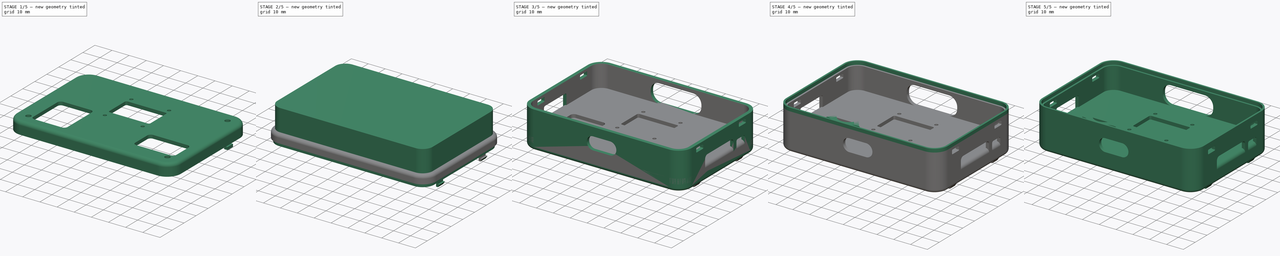
[diagram: build sequence overview — one tinted view per stage of 5, left to right]
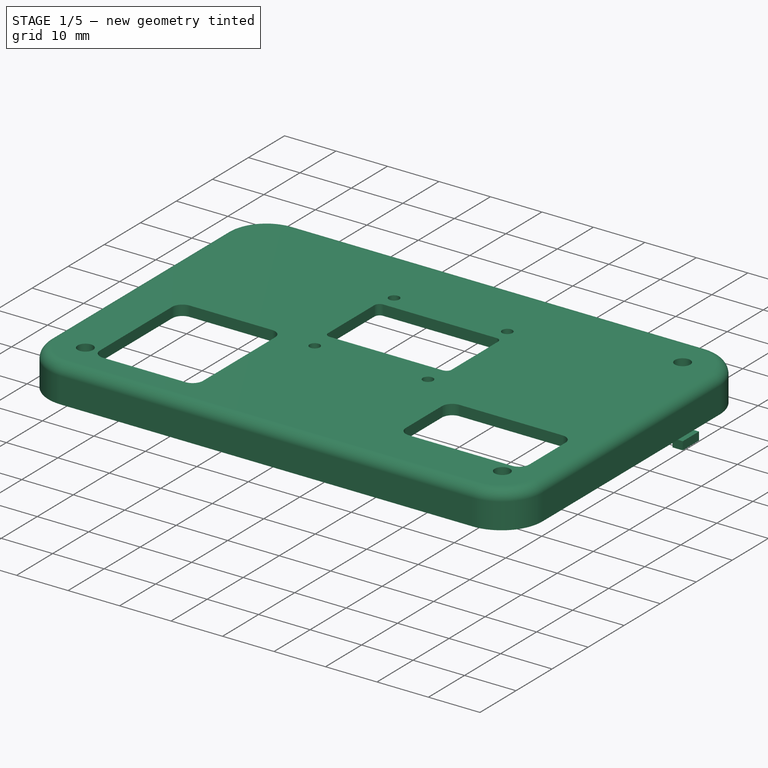
[diagram: stage 1 of 5 — iso view after this stage's code; geometry added in this stage tinted green]
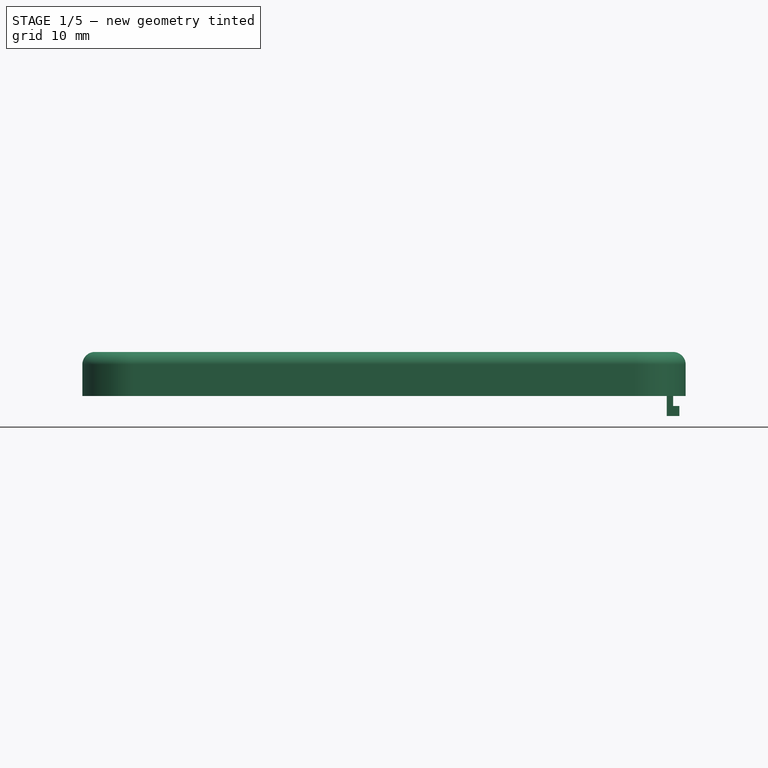
[diagram: stage 1 of 5 — front view after this stage's code; geometry added in this stage tinted green]
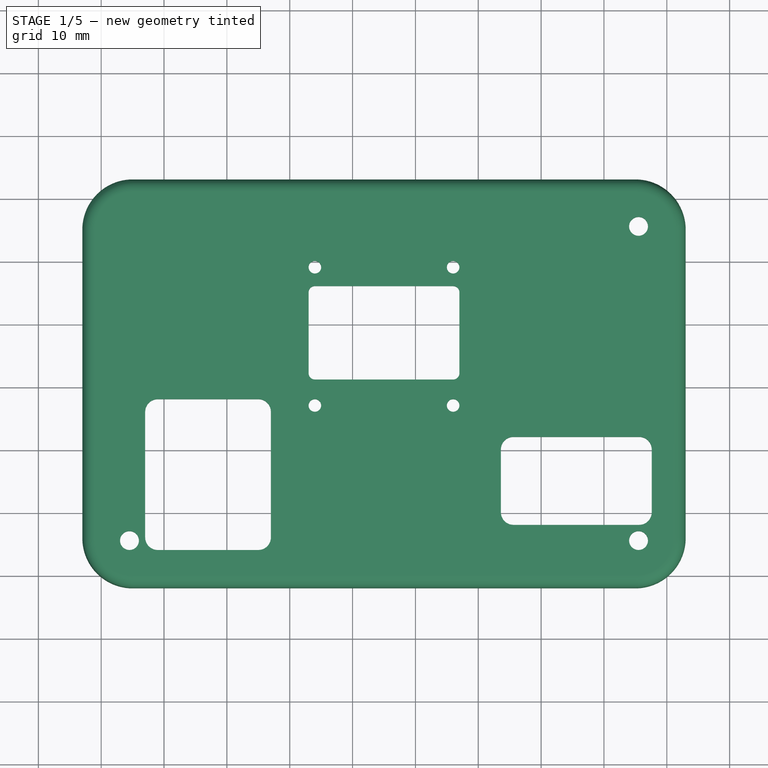
[diagram: stage 1 of 5 — top view after this stage's code; geometry added in this stage tinted green]
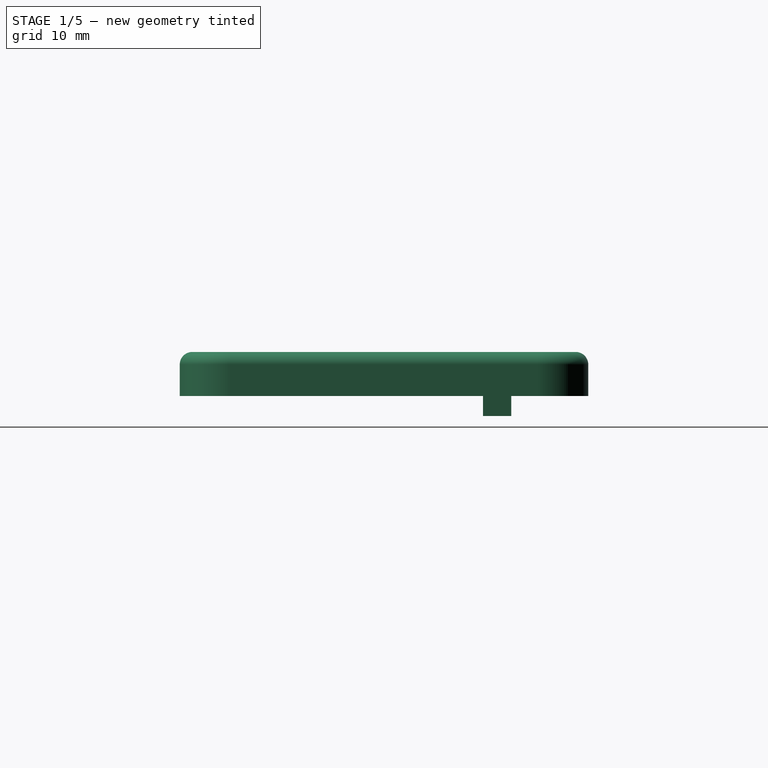
[diagram: stage 1 of 5 — right view after this stage's code; geometry added in this stage tinted green]
FCSTD DOCUMENT  (FreeCAD 1.0R39109 (Git))
Label: version3-2
License: All rights reserved
LicenseURL: http://en.wikipedia.org/wiki/All_rights_reserved
objects: Part::Feature×59, App::Part×58, Sketcher::SketchObject×24, PartDesign::Pocket×16, PartDesign::Pad×8, PartDesign::Plane×6, PartDesign::Mirrored×4, PartDesign::ShapeBinder×3, PartDesign::Thickness×3, PartDesign::Body×3, PartDesign::Line×2, PartDesign::PolarPattern×2
note: 214 computed .brp shape members not serialized (recipe doc carries the construction recipe); baked Part::Feature solids carry a one-line shape summary decoded from their .brp

FEATURE [PartDesign::Body] Body
  AllowCompound = false
  Group = -> [CopyPart__Feature058,Sketch001,Pad,Thickness,Sketch,Pocket,Sketch002,Pocket001,Sketch003,Pocket002,Sketch004,Pocket003,Sketch005,Pocket004,Sketch006,Pocket005,Sketch016,Pad004]
  Origin = -> Origin058
  Tip = -> Pad004
FEATURE [PartDesign::ShapeBinder] CopyPart__Feature060
  Placement = pos=(-171,60,0) rot=(0,0,1;0rad)
  TraceSupport = false
FEATURE [PartDesign::Plane] DatumPlane004
  AttachmentOffset = pos=(0,0,29.5) rot=(0,0,1;0rad)
  AttachmentSupport = -> [XZ_Plane061]
  Length = 133.362
  MapMode = 5
  Placement = pos=(0,-29.5,6.6e-15) rot=(1,0,0;1.5708rad)
  ResizeMode = 0
  Width = 65.3623
FEATURE [Sketcher::SketchObject] Sketch017
  ArcFitTolerance = 1e-06
  AttachmentSupport = -> [CopyPart__Feature060]
  ExternalGeometry = -> [CopyPart__Feature060]
  FullyConstrained = false
  MakeInternals = false
  MapMode = 5
  Placement = pos=(-171,60,1.6) rot=(0,0,1;0rad)
  sketch-geometry (11):
    g0: LineSegment StartX=170 StartY=-65 StartZ=0 EndX=170 EndY=-114 EndZ=0
    g1: LineSegment StartX=176 StartY=-120 StartZ=0 EndX=256 EndY=-120 EndZ=0
    g2: LineSegment StartX=262 StartY=-114 StartZ=0 EndX=262 EndY=-65 EndZ=0
    g3: LineSegment StartX=256 StartY=-59 StartZ=0 EndX=176 EndY=-59 EndZ=0
    g4: ArcOfCircle CenterX=176 CenterY=-65 CenterZ=0 NormalX=0 NormalY=0 NormalZ=1 AngleXU=0 Radius=6 StartAngle=1.5708 EndAngle=3.14159
    g5: ArcOfCircle CenterX=176 CenterY=-114 CenterZ=0 NormalX=0 NormalY=0 NormalZ=1 AngleXU=0 Radius=6 StartAngle=3.14159 EndAngle=4.71239
    g6: GeomPoint [constr] X=170 Y=-120 Z=0
    g7: ArcOfCircle CenterX=256 CenterY=-114 CenterZ=0 NormalX=0 NormalY=0 NormalZ=1 AngleXU=0 Radius=6 StartAngle=4.71239 EndAngle=6.28319
    g8: GeomPoint [constr] X=262 Y=-120 Z=0
    g9: ArcOfCircle CenterX=256 CenterY=-65 CenterZ=0 NormalX=0 NormalY=0 NormalZ=1 AngleXU=0 Radius=6 StartAngle=-9e-16 EndAngle=1.5708
    g10: GeomPoint [constr] X=261 Y=-60 Z=0
  constraints (25):
    c: Tangent(g0,g4) = -1.5708
    c: Tangent(g3,g4) = -1.5708
    c: PointOnObject(g6,g0)
    c: PointOnObject(g6,g1)
    c: Tangent(g0,g5) = -1.5708
    c: Tangent(g1,g5) = -1.5708
    c: PointOnObject(g8,g1)
    c: PointOnObject(g8,g2)
    c: Tangent(g1,g7) = -1.5708
    c: Tangent(g2,g7) = -1.5708
    c: Tangent(g2,g9) = -1.5708
    c: Tangent(g3,g9) = -1.5708
    c: Parallel(g1,g-3)
    c: Parallel(g3,g-6)
    c: Parallel(g-5,g0)
    c: Parallel(g2,g-4)
    c: DistanceY(g-6,g-6) = 0
    c: DistanceX(g0,g-7) = 1
    c: DistanceY(g-7,g3) = 1
    c: DistanceY(g-7,g0) = 0
    c: DistanceX(g-9,g2) = 1
    c: DistanceY(g2,g-9) = 0
    c: DistanceX(g1,g-9) = 0
    c: DistanceX(g5,g-10) = 0
    c: DistanceY(g-8,g9) = 0
FEATURE [PartDesign::Pad] Pad005
  Direction = (0,0,1)
  Length = 5
  Length2 = 10
  Placement = pos=(-171,60,0) rot=(0,0,1;0rad)
  Profile = -> Sketch017
  ReferenceAxis = -> Sketch017 [N_Axis]
  Suppressed = false
  Type = 0
FEATURE [PartDesign::Thickness] Thickness002
  Base = -> Pad005 [Face9]
  BaseFeature = -> Pad005
  Intersection = false
  Join = 0
  Mode = 0
  SupportTransform = false
  Suppressed = false
  Value = 2
FEATURE [Sketcher::SketchObject] Sketch018
  ArcFitTolerance = 1e-06
  AttachmentSupport = -> [Thickness002]
  ExternalGeometry = -> [CopyPart__Feature060]
  FullyConstrained = false
  MakeInternals = false
  MapMode = 5
  Placement = pos=(0,0,8.6) rot=(0,0,1;0rad)
  sketch-geometry (17):
    g0: LineSegment StartX=33 StartY=-15.0036 StartZ=0 EndX=33 EndY=-27.8691 EndZ=0
    g1: LineSegment StartX=34 StartY=-28.8691 StartZ=0 EndX=56 EndY=-28.8691 EndZ=0
    g2: LineSegment StartX=57 StartY=-27.8691 StartZ=0 EndX=57 EndY=-15.0036 EndZ=0
    g3: LineSegment StartX=56 StartY=-14.0036 StartZ=0 EndX=34 EndY=-14.0036 EndZ=0
    g4: ArcOfCircle CenterX=34 CenterY=-15.0036 CenterZ=0 NormalX=0 NormalY=0 NormalZ=1 AngleXU=0 Radius=1 StartAngle=1.5708 EndAngle=3.14159
    g5: ArcOfCircle CenterX=34 CenterY=-27.8691 CenterZ=0 NormalX=0 NormalY=0 NormalZ=1 AngleXU=0 Radius=1 StartAngle=3.14159 EndAngle=4.71239
    g6: ArcOfCircle CenterX=56 CenterY=-27.8691 CenterZ=0 NormalX=0 NormalY=0 NormalZ=1 AngleXU=0 Radius=1 StartAngle=4.71239 EndAngle=6.28319
    g7: ArcOfCircle CenterX=56 CenterY=-15.0036 CenterZ=0 NormalX=0 NormalY=0 NormalZ=1 AngleXU=0 Radius=1 StartAngle=-1.8e-15 EndAngle=1.5708
    g8: GeomPoint [constr] X=33 Y=-14.0036 Z=0
    g9: GeomPoint [constr] X=57 Y=-28.8691 Z=0
    g10: Circle CenterX=34 CenterY=-11 CenterZ=0 NormalX=0 NormalY=0 NormalZ=1 AngleXU=0 Radius=1
    g11: Circle CenterX=56 CenterY=-11 CenterZ=0 NormalX=0 NormalY=0 NormalZ=1 AngleXU=0 Radius=1
    g12: Circle CenterX=56 CenterY=-33 CenterZ=0 NormalX=0 NormalY=0 NormalZ=1 AngleXU=0 Radius=1
    g13: Circle CenterX=34 CenterY=-33 CenterZ=0 NormalX=0 NormalY=0 NormalZ=1 AngleXU=0 Radius=1
    g14: Circle CenterX=4.5 CenterY=-54.5 CenterZ=0 NormalX=0 NormalY=0 NormalZ=1 AngleXU=0 Radius=1.5
    g15: Circle CenterX=85.5 CenterY=-54.5 CenterZ=0 NormalX=0 NormalY=0 NormalZ=1 AngleXU=0 Radius=1.5
    g16: Circle CenterX=85.5 CenterY=-4.5 CenterZ=0 NormalX=0 NormalY=0 NormalZ=1 AngleXU=0 Radius=1.5
  constraints (37):
    c: Tangent(g0,g4) = -1.5708
    c: Tangent(g0,g5) = -1.5708
    c: Tangent(g1,g5) = -1.5708
    c: Tangent(g1,g6) = -1.5708
    c: Tangent(g2,g6) = -1.5708
    c: Tangent(g2,g7) = -1.5708
    c: Tangent(g3,g7) = -1.5708
    c: Tangent(g3,g4) = -1.5708
    c: Vertical(g0)
    c: Vertical(g2)
    c: Horizontal(g1)
    c: Horizontal(g3)
    c: Equal(g4,g5)
    c: Equal(g5,g6)
    c: Equal(g6,g7)
    c: PointOnObject(g8,g0)
    c: PointOnObject(g8,g3)
    c: PointOnObject(g9,g1)
    c: PointOnObject(g9,g2)
    c: Radius(g5) = 1
    c: Vertical(g3,g-3)
    c: Vertical(g-4,g3)
    c: Vertical(g1,g-5)
    c: Coincident(g10,g-3)
    c: Equal(g10,g-3)
    c: Coincident(g11,g-4)
    c: Equal(g11,g-4)
    c: Coincident(g12,g-5)
    c: Equal(g12,g-5)
    c: Coincident(g13,g-6)
    c: Equal(g13,g-6)
    c: Coincident(g14,g-7)
    c: Equal(g14,g-7)
    c: Coincident(g15,g-8)
    c: Equal(g15,g-8)
    c: Coincident(g16,g-9)
    c: Equal(g16,g-9)
FEATURE [PartDesign::Pocket] Pocket011
  BaseFeature = -> Thickness002
  Direction = (0,0,-1)
  Length = 5
  Length2 = 5
  Profile = -> Sketch018
  ReferenceAxis = -> Sketch018 [N_Axis]
  Suppressed = false
  Type = 2
FEATURE [Sketcher::SketchObject] Sketch019
  ArcFitTolerance = 1e-06
  AttachmentSupport = -> [Pocket011]
  ExternalGeometry = -> [Pocket011]
  FullyConstrained = true
  MakeInternals = false
  MapMode = 5
  Placement = pos=(0,0,8.6) rot=(0,0,1;0rad)
  sketch-geometry (22):
    g0: LineSegment StartX=7 StartY=-34 StartZ=0 EndX=7 EndY=-54 EndZ=0
    g1: LineSegment StartX=9 StartY=-56 StartZ=0 EndX=25 EndY=-56 EndZ=0
    g2: LineSegment StartX=27 StartY=-54 StartZ=0 EndX=27 EndY=-34 EndZ=0
    g3: LineSegment StartX=25 StartY=-32 StartZ=0 EndX=9 EndY=-32 EndZ=0
    g4: ArcOfCircle CenterX=25 CenterY=-34 CenterZ=0 NormalX=0 NormalY=0 NormalZ=1 AngleXU=0 Radius=2 StartAngle=-9e-16 EndAngle=1.5708
    g5: GeomPoint [constr] X=27 Y=-32 Z=0
    g6: ArcOfCircle CenterX=9 CenterY=-34 CenterZ=0 NormalX=0 NormalY=0 NormalZ=1 AngleXU=0 Radius=2 StartAngle=1.5708 EndAngle=3.14159
    g7: GeomPoint [constr] X=7 Y=-32 Z=0
    g8: ArcOfCircle CenterX=9 CenterY=-54 CenterZ=0 NormalX=0 NormalY=0 NormalZ=1 AngleXU=0 Radius=2 StartAngle=3.14159 EndAngle=4.71239
    g9: GeomPoint [constr] X=7 Y=-56 Z=0
    g10: ArcOfCircle CenterX=25 CenterY=-54 CenterZ=0 NormalX=0 NormalY=0 NormalZ=1 AngleXU=0 Radius=2 StartAngle=4.71239 EndAngle=6.28319
    g11: GeomPoint [constr] X=27 Y=-56 Z=0
    g12: LineSegment StartX=63.6 StartY=-40 StartZ=0 EndX=63.6 EndY=-50 EndZ=0
    g13: LineSegment StartX=65.6 StartY=-52 StartZ=0 EndX=85.6 EndY=-52 EndZ=0
    g14: LineSegment StartX=87.6 StartY=-50 StartZ=0 EndX=87.6 EndY=-40 EndZ=0
    g15: LineSegment StartX=85.6 StartY=-38 StartZ=0 EndX=65.6 EndY=-38 EndZ=0
    g16: ArcOfCircle CenterX=65.6 CenterY=-40 CenterZ=0 NormalX=0 NormalY=0 NormalZ=1 AngleXU=0 Radius=2 StartAngle=1.5708 EndAngle=3.14159
    g17: ArcOfCircle CenterX=65.6 CenterY=-50 CenterZ=0 NormalX=0 NormalY=0 NormalZ=1 AngleXU=0 Radius=2 StartAngle=3.14159 EndAngle=4.71239
    g18: ArcOfCircle CenterX=85.6 CenterY=-50 CenterZ=0 NormalX=0 NormalY=0 NormalZ=1 AngleXU=0 Radius=2 StartAngle=4.71239 EndAngle=6.28319
    g19: ArcOfCircle CenterX=85.6 CenterY=-40 CenterZ=0 NormalX=0 NormalY=0 NormalZ=1 AngleXU=0 Radius=2 StartAngle=0 EndAngle=1.5708
    g20: GeomPoint [constr] X=63.6 Y=-38 Z=0
    g21: GeomPoint [constr] X=87.6 Y=-52 Z=0
  constraints (52):
    c: Vertical(g0)
    c: Vertical(g2)
    c: Horizontal(g1)
    c: Horizontal(g3)
    c: DistanceX(g7,g5) = 20
    c: DistanceY(g11,g5) = 24
    c: DistanceY(g-3,g9) = 4
    c: DistanceX(g-3,g9) = 2
    c: PointOnObject(g5,g2)
    c: PointOnObject(g5,g3)
    c: Tangent(g2,g4) = -1.5708
    c: Tangent(g3,g4) = -1.5708
    c: PointOnObject(g7,g0)
    c: PointOnObject(g7,g3)
    c: Tangent(g0,g6) = -1.5708
    c: Tangent(g3,g6) = -1.5708
    c: PointOnObject(g9,g0)
    c: PointOnObject(g9,g1)
    c: Tangent(g0,g8) = -1.5708
    c: Tangent(g1,g8) = -1.5708
    c: PointOnObject(g11,g1)
    c: PointOnObject(g11,g2)
    c: Tangent(g1,g10) = -1.5708
    c: Tangent(g2,g10) = -1.5708
    c: Radius(g10) = 2
    c: Equal(g8,g6)
    c: Equal(g6,g4)
    c: Equal(g6,g10)
    c: Tangent(g12,g16) = -1.5708
    c: Tangent(g12,g17) = -1.5708
    c: Tangent(g13,g17) = -1.5708
    c: Tangent(g13,g18) = -1.5708
    c: Tangent(g14,g18) = -1.5708
    c: Tangent(g14,g19) = -1.5708
    c: Tangent(g15,g19) = -1.5708
    c: Tangent(g15,g16) = -1.5708
    c: Vertical(g12)
    c: Vertical(g14)
    c: Horizontal(g13)
    c: Horizontal(g15)
    c: Equal(g16,g17)
    c: Equal(g17,g18)
    c: Equal(g18,g19)
    c: PointOnObject(g20,g12)
    c: PointOnObject(g20,g15)
    c: PointOnObject(g21,g13)
    c: PointOnObject(g21,g14)
    c: Radius(g17) = 2
    c: DistanceY(g13,g15) = 14
    c: DistanceX(g12,g14) = 24
    c: DistanceX(g-3,g13) = 0.6
    c: DistanceY(g-3,g13) = 8
FEATURE [PartDesign::Pocket] Pocket012
  BaseFeature = -> Pocket011
  Direction = (0,0,-1)
  Length = 5
  Length2 = 5
  Profile = -> Sketch019
  ReferenceAxis = -> Sketch019 [N_Axis]
  Suppressed = false
  Type = 2
FEATURE [Sketcher::SketchObject] Sketch020
  ArcFitTolerance = 1e-06
  AttachmentSupport = -> [Pocket012]
  ExternalGeometry = -> [Pocket012]
  FullyConstrained = true
  MakeInternals = false
  MapMode = 5
  Placement = pos=(91,0,0) rot=(0.57735,-0.57735,-0.57735;2.0944rad)
  sketch-geometry (4):
    g0: LineSegment StartX=9.25 StartY=4.6 StartZ=0 EndX=9.25 EndY=-1.6 EndZ=0
    g1: LineSegment StartX=9.25 StartY=-1.6 StartZ=0 EndX=13.75 EndY=-1.6 EndZ=0
    g2: LineSegment StartX=13.75 StartY=-1.6 StartZ=0 EndX=13.75 EndY=4.6 EndZ=0
    g3: LineSegment StartX=13.75 StartY=4.6 StartZ=0 EndX=9.25 EndY=4.6 EndZ=0
  constraints (12):
    c: Coincident(g0,g1)
    c: Coincident(g1,g2)
    c: Coincident(g2,g3)
    c: Coincident(g3,g0)
    c: Vertical(g0)
    c: Vertical(g2)
    c: Horizontal(g1)
    c: Horizontal(g3)
    c: DistanceX(g-3,g0) = 4.25
    c: DistanceX(g3,g3) = 4.5
    c: DistanceY(g-3,g0) = 3
    c: DistanceY(g0,g-3) = 3.2
FEATURE [PartDesign::Pad] Pad006
  BaseFeature = -> Pocket012
  Direction = (-1,0,0)
  Length = 1
  Length2 = 10
  Profile = -> Sketch020
  ReferenceAxis = -> Sketch020 [N_Axis]
  Suppressed = false
  Type = 0
FEATURE [Sketcher::SketchObject] Sketch021
  ArcFitTolerance = 1e-06
  AttachmentSupport = -> [Pad006]
  ExternalGeometry = -> [Pad006]
  FullyConstrained = true
  MakeInternals = false
  MapMode = 5
  Placement = pos=(0,-13.75,0) rot=(1,0,0;1.5708rad)
  sketch-geometry (3):
    g0: LineSegment StartX=91 StartY=4.6 StartZ=0 EndX=90 EndY=3.22523 EndZ=0
    g1: LineSegment StartX=90 StartY=3.22523 StartZ=0 EndX=90 EndY=4.6 EndZ=0
    g2: LineSegment StartX=91 StartY=4.6 StartZ=0 EndX=90 EndY=4.6 EndZ=0
  constraints (6):
    c: Coincident(g0,g-5)
    c: Coincident(g1,g0)
    c: Coincident(g2,g0)
    c: Coincident(g2,g1)
    c: Perpendicular(g1,g-5) = 1.5708
    c: Distance(g0,g0) = 1.7
FEATURE [PartDesign::Pocket] Pocket013
  BaseFeature = -> Pad006
  Direction = (0,1,-2e-16)
  Length = 5
  Length2 = 5
  Profile = -> Sketch021
  ReferenceAxis = -> Sketch021 [N_Axis]
  Suppressed = false
  Type = 2
FEATURE [Sketcher::SketchObject] Sketch022
  ArcFitTolerance = 1e-06
  AttachmentSupport = -> [Pocket013]
  ExternalGeometry = -> [Pocket013]
  FullyConstrained = true
  MakeInternals = false
  MapMode = 5
  Placement = pos=(91,0,0) rot=(0.57735,0.57735,0.57735;2.0944rad)
  sketch-geometry (4):
    g0: LineSegment StartX=-13.75 StartY=-1.6 StartZ=0 EndX=-9.25 EndY=-1.6 EndZ=0
    g1: LineSegment StartX=-9.25 StartY=-1.6 StartZ=0 EndX=-9.25 EndY=0 EndZ=0
    g2: LineSegment StartX=-9.25 StartY=0 StartZ=0 EndX=-13.75 EndY=0 EndZ=0
    g3: LineSegment StartX=-13.75 StartY=0 StartZ=0 EndX=-13.75 EndY=-1.6 EndZ=0
  constraints (11):
    c: Coincident(g0,g1)
    c: Coincident(g1,g2)
    c: Coincident(g2,g3)
    c: Coincident(g3,g0)
    c: Horizontal(g0)
    c: Horizontal(g2)
    c: Vertical(g1)
    c: Vertical(g3)
    c: Coincident(g0,g-4)
    c: PointOnObject(g1,g-3)
    c: DistanceY(g1,g-3) = 1.6
FEATURE [PartDesign::Pad] Pad007
  BaseFeature = -> Pocket013
  Direction = (1,0,0)
  Length = 1
  Length2 = 10
  Profile = -> Sketch022
  ReferenceAxis = -> Sketch022 [N_Axis]
  Suppressed = false
  Type = 0
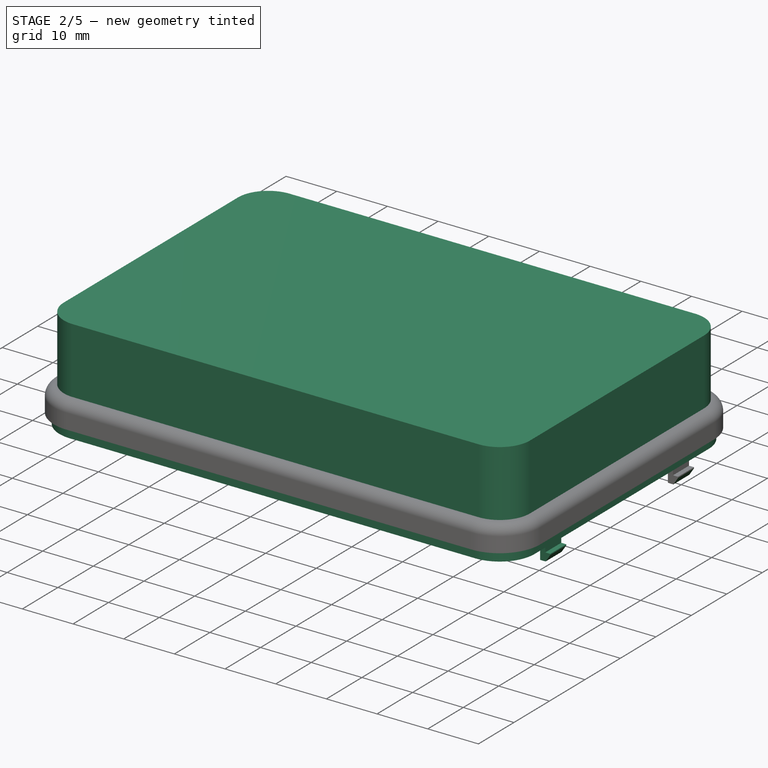
[diagram: stage 2 of 5 — iso view after this stage's code; geometry added in this stage tinted green]
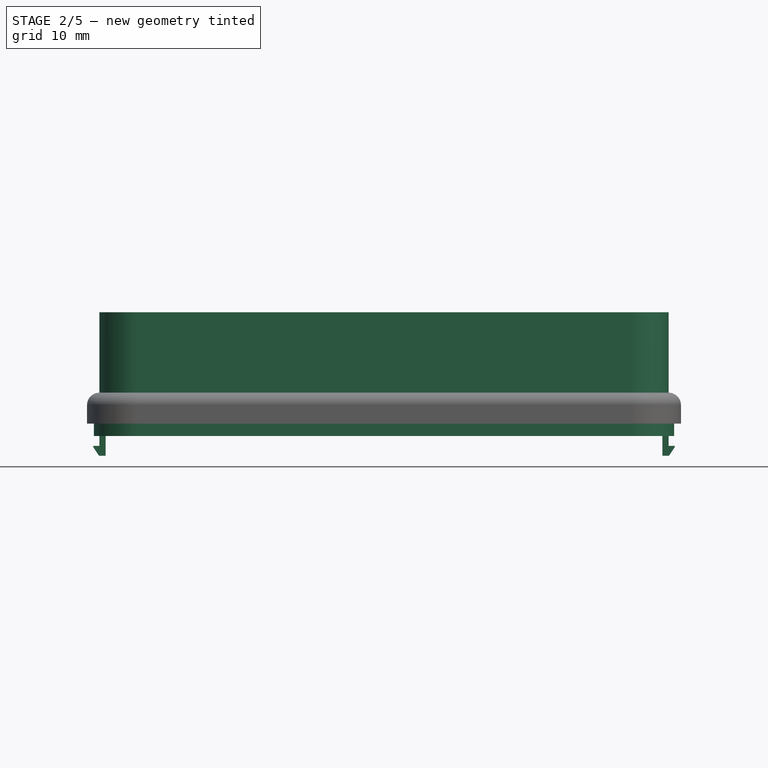
[diagram: stage 2 of 5 — front view after this stage's code; geometry added in this stage tinted green]
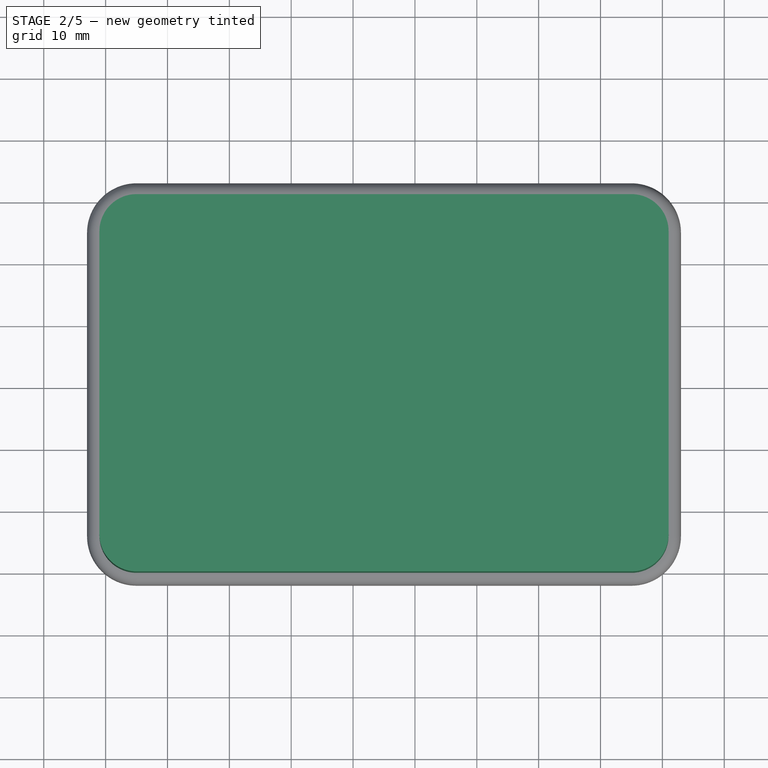
[diagram: stage 2 of 5 — top view after this stage's code; geometry added in this stage tinted green]
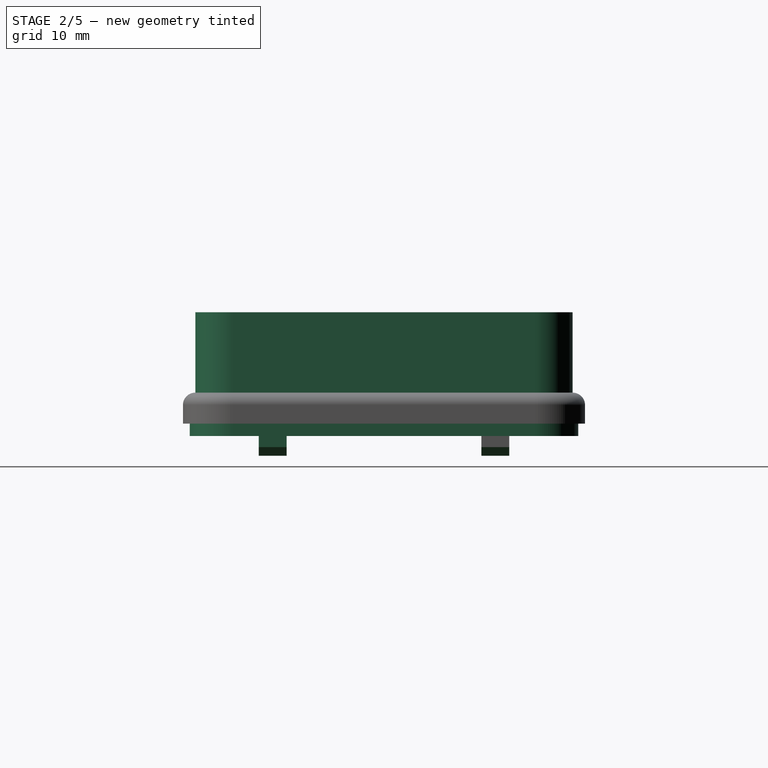
[diagram: stage 2 of 5 — right view after this stage's code; geometry added in this stage tinted green]
FEATURE [Part::Feature] Part__Feature  label="PinHeader_1x03_P254mm_Vertical"
  shape: bbox 2.54 x 7.62 x 11.54 mm, 76 faces (baked)
FEATURE [App::Part] PinHeader_1x03_P2_54mm_Vertical  label="PinHeader_1x03_P2.54mm_Vertical"
  Group = -> [Part__Feature]
  Origin = -> Origin
  Placement = pos=(213.5,-62.5,1.65) rot=(0,0,1;1.5708rad)
FEATURE [Part::Feature] Part__Feature001  label="C_0805_2012Metric"
  shape: bbox 2 x 1.25 x 1.25 mm, 28 faces (baked)
FEATURE [App::Part] C_0805_2012Metric  label="C_0805_2012Metric001"
  Group = -> [Part__Feature001]
  Origin = -> Origin001
  Placement = pos=(226.463,-101.5,1.65) rot=(0,0,1;0rad)
FEATURE [Part::Feature] Part__Feature002  label="SW_SPST_TL3342"
  shape: bbox 6.401 x 5.201 x 1.541 mm, 193 faces (baked)
FEATURE [App::Part] SW_SPST_TL3342  label="SW_SPST_TL3343"
  Group = -> [Part__Feature002]
  Origin = -> Origin002
  Placement = pos=(193.85,-104.4,1.65) rot=(0,0,1;0rad)
FEATURE [Part::Feature] Part__Feature003  label="SOT_23"
  shape: bbox 2.5 x 3 x 1.2 mm, 76 faces (baked)
FEATURE [App::Part] SOT_23  label="SOT-23"
  Group = -> [Part__Feature003]
  Origin = -> Origin003
  Placement = pos=(197.5,-115.562,1.65) rot=(0,0,1;1.5708rad)
FEATURE [Part::Feature] Part__Feature004  label="R_0805_2012Metric"
  shape: bbox 2 x 1.2 x 0.45 mm, 26 faces (baked)
FEATURE [App::Part] R_0805_2012Metric  label="R_0805_2012Metric001"
  Group = -> [Part__Feature004]
  Origin = -> Origin004
  Placement = pos=(198,-94,1.65) rot=(0,0,1;0rad)
FEATURE [Part::Feature] Part__Feature005  label="SW_SPST_TL3344"
  shape: bbox 6.401 x 5.201 x 1.541 mm, 193 faces (baked)
FEATURE [App::Part] SW_SPST_TL3343  label="SW_SPST_TL3345"
  Group = -> [Part__Feature005]
  Origin = -> Origin005
  Placement = pos=(252.35,-104.9,1.65) rot=(0,0,1;0rad)
FEATURE [Part::Feature] Part__Feature006  label="R_0805_2012Metric002"
  shape: bbox 2 x 1.2 x 0.45 mm, 26 faces (baked)
FEATURE [App::Part] R_0805_2012Metric001  label="R_0805_2012Metric003"
  Group = -> [Part__Feature006]
  Origin = -> Origin006
  Placement = pos=(179,-90.5,1.65) rot=(0,0,1;3.14159rad)
FEATURE [Part::Feature] Part__Feature007  label="R_0805_2012Metric004"
  shape: bbox 2 x 1.2 x 0.45 mm, 26 faces (baked)
FEATURE [App::Part] R_0805_2012Metric002  label="R_0805_2012Metric005"
  Group = -> [Part__Feature007]
  Origin = -> Origin007
  Placement = pos=(250.5,-86,1.65) rot=(0,0,1;3.14159rad)
FEATURE [Part::Feature] Part__Feature008  label="SW_SPST_TL3346"
  shape: bbox 6.401 x 5.201 x 1.541 mm, 193 faces (baked)
FEATURE [App::Part] SW_SPST_TL3344  label="SW_SPST_TL3347"
  Group = -> [Part__Feature008]
  Origin = -> Origin008
  Placement = pos=(180.85,-104.4,1.65) rot=(0,0,1;0rad)
FEATURE [Part::Feature] Part__Feature009  label="R_0805_2012Metric006"
  shape: bbox 2 x 1.2 x 0.45 mm, 26 faces (baked)
FEATURE [App::Part] R_0805_2012Metric003  label="R_0805_2012Metric007"
  Group = -> [Part__Feature009]
  Origin = -> Origin009
  Placement = pos=(179,-97.5,1.65) rot=(0,0,1;3.14159rad)
FEATURE [Part::Feature] Part__Feature010  label="SOT_23_5"
  shape: bbox 2.8 x 2.9 x 1.55 mm, 109 faces (baked)
FEATURE [App::Part] SOT_23_5  label="SOT-23-5"
  Group = -> [Part__Feature010]
  Origin = -> Origin010
  Placement = pos=(220.15,-105.95,1.65) rot=(0,0,1;0rad)
FEATURE [Part::Feature] Part__Feature011  label="SOIC_16_39x99mm_P127mm"
  shape: bbox 6 x 9.9 x 1.75 mm, 276 faces (baked)
FEATURE [App::Part] SOIC_16_3_9x9_9mm_P1_27mm  label="SOIC-16_3.9x9.9mm_P1.27mm"
  Group = -> [Part__Feature011]
  Origin = -> Origin011
  Placement = pos=(208.945,-103.975,1.65) rot=(0,0,1;1.5708rad)
FEATURE [Part::Feature] Part__Feature012  label="SW_SPST_TL3348"
  shape: bbox 6.401 x 5.201 x 1.541 mm, 193 faces (baked)
FEATURE [App::Part] SW_SPST_TL3345  label="SW_SPST_TL3349"
  Group = -> [Part__Feature012]
  Origin = -> Origin012
  Placement = pos=(187.35,-111.4,1.65) rot=(0,0,1;0rad)
FEATURE [Part::Feature] Part__Feature013  label="C_0805_2012Metric002"
  shape: bbox 2 x 1.25 x 1.25 mm, 28 faces (baked)
FEATURE [App::Part] C_0805_2012Metric001  label="C_0805_2012Metric003"
  Group = -> [Part__Feature013]
  Origin = -> Origin013
  Placement = pos=(226.463,-108.5,1.65) rot=(0,0,1;0rad)
FEATURE [Part::Feature] Part__Feature014  label="LED_0805_2012Metric"
  shape: bbox 2 x 1.25 x 1.1 mm, 50 faces (baked)
FEATURE [App::Part] LED_0805_2012Metric  label="LED_0805_2012Metric001"
  Group = -> [Part__Feature014]
  Origin = -> Origin014
  Placement = pos=(250.475,-89.5,1.65) rot=(0,0,1;0rad)
FEATURE [Part::Feature] Part__Feature015  label="C_0805_2012Metric004"
  shape: bbox 2 x 1.25 x 1.25 mm, 28 faces (baked)
FEATURE [App::Part] C_0805_2012Metric002  label="C_0805_2012Metric005"
  Group = -> [Part__Feature015]
  Origin = -> Origin015
  Placement = pos=(226.463,-105,1.65) rot=(0,0,1;0rad)
FEATURE [Part::Feature] Part__Feature016  label="LED_D5.0mm_Horizontal_O1.27mm_Z3.0mm"
  shape: bbox 5.4 x 10.17 x 7.9 mm, 33 faces (baked)
FEATURE [App::Part] LED_D5_0mm_Horizontal_O1_27mm_Z3_0mm  label="LED_D5.0mm_Horizontal_O1.27mm_Z3.0mm001"
  Group = -> [Part__Feature016]
  Origin = -> Origin016
  Placement = pos=(226.275,-62.5,1.65) rot=(0,0,1;3.14159rad)
FEATURE [Part::Feature] Part__Feature017  label="R_0805_2012Metric008"
  shape: bbox 2 x 1.2 x 0.45 mm, 26 faces (baked)
FEATURE [App::Part] R_0805_2012Metric004  label="R_0805_2012Metric009"
  Group = -> [Part__Feature017]
  Origin = -> Origin017
  Placement = pos=(198,-97,1.65) rot=(0,0,1;0rad)
FEATURE [Part::Feature] Part__Feature018  label="D_SOD_123F"
  shape: bbox 3.5 x 1.6 x 1.1 mm, 27 faces (baked)
FEATURE [App::Part] D_SOD_123F  label="D_SOD-123F"
  Group = -> [Part__Feature018]
  Origin = -> Origin018
  Placement = pos=(226.1,-116,1.65) rot=(0,0,1;0rad)
FEATURE [Part::Feature] Part__Feature019  label="R_0805_2012Metric010"
  shape: bbox 2 x 1.2 x 0.45 mm, 26 faces (baked)
FEATURE [App::Part] R_0805_2012Metric005  label="R_0805_2012Metric011"
  Group = -> [Part__Feature019]
  Origin = -> Origin019
  Placement = pos=(197.5,-111.5,1.65) rot=(0,0,1;3.14159rad)
FEATURE [Part::Feature] Part__Feature020  label="R_0805_2012Metric012"
  shape: bbox 2 x 1.2 x 0.45 mm, 26 faces (baked)
FEATURE [App::Part] R_0805_2012Metric006  label="R_0805_2012Metric013"
  Group = -> [Part__Feature020]
  Origin = -> Origin020
  Placement = pos=(219.5,-101.5,1.65) rot=(0,0,1;3.14159rad)
FEATURE [Part::Feature] Part__Feature021  label="SW_SPST_TL3350"
  shape: bbox 6.401 x 5.201 x 1.541 mm, 193 faces (baked)
FEATURE [App::Part] SW_SPST_TL3346  label="SW_SPST_TL3351"
  Group = -> [Part__Feature021]
  Origin = -> Origin021
  Placement = pos=(241.35,-104.9,1.65) rot=(0,0,1;0rad)
FEATURE [Part::Feature] Part__Feature022  label="R_0805_2012Metric014"
  shape: bbox 2 x 1.2 x 0.45 mm, 26 faces (baked)
FEATURE [App::Part] R_0805_2012Metric007  label="R_0805_2012Metric015"
  Group = -> [Part__Feature022]
  Origin = -> Origin022
  Placement = pos=(205,-111.5,1.65) rot=(0,0,1;0rad)
FEATURE [Part::Feature] Part__Feature023  label="SOT_024"
  shape: bbox 2.5 x 3 x 1.2 mm, 76 faces (baked)
FEATURE [App::Part] SOT_024  label="SOT-024"
  Group = -> [Part__Feature023]
  Origin = -> Origin023
  Placement = pos=(231.562,-65.5625,1.65) rot=(0,0,1;1.5708rad)
FEATURE [Part::Feature] Part__Feature024  label="R_0805_2012Metric016"
  shape: bbox 2 x 1.2 x 0.45 mm, 26 faces (baked)
FEATURE [App::Part] R_0805_2012Metric008  label="R_0805_2012Metric017"
  Group = -> [Part__Feature024]
  Origin = -> Origin024
  Placement = pos=(198,-91,1.65) rot=(0,0,1;0rad)
FEATURE [Part::Feature] Part__Feature025  label="R_0805_2012Metric018"
  shape: bbox 2 x 1.2 x 0.45 mm, 26 faces (baked)
FEATURE [App::Part] R_0805_2012Metric009  label="R_0805_2012Metric019"
  Group = -> [Part__Feature025]
  Origin = -> Origin025
  Placement = pos=(179,-94,1.65) rot=(0,0,1;3.14159rad)
FEATURE [Part::Feature] Part__Feature026  label="R_0805_2012Metric020"
  shape: bbox 2 x 1.2 x 0.45 mm, 26 faces (baked)
FEATURE [App::Part] R_0805_2012Metric010  label="R_0805_2012Metric021"
  Group = -> [Part__Feature026]
  Origin = -> Origin026
  Placement = pos=(225,-66,1.65) rot=(0,0,1;0rad)
FEATURE [Part::Feature] Part__Feature027  label="R_0805_2012Metric022"
  shape: bbox 2 x 1.2 x 0.45 mm, 26 faces (baked)
FEATURE [App::Part] R_0805_2012Metric011  label="R_0805_2012Metric023"
  Group = -> [Part__Feature027]
  Origin = -> Origin027
  Placement = pos=(226.5,-112.5,1.65) rot=(0,0,1;3.14159rad)
FEATURE [Part::Feature] Part__Feature028  label="R_0805_2012Metric024"
  shape: bbox 2 x 1.2 x 0.45 mm, 26 faces (baked)
FEATURE [App::Part] R_0805_2012Metric012  label="R_0805_2012Metric025"
  Group = -> [Part__Feature028]
  Origin = -> Origin028
  Placement = pos=(232,-71.5,1.65) rot=(0,0,-1;1.5708rad)
FEATURE [Part::Feature] Part__Feature029  label="SW_SPST_TL3352"
  shape: bbox 6.401 x 5.201 x 1.541 mm, 193 faces (baked)
FEATURE [App::Part] SW_SPST_TL3347  label="SW_SPST_TL3353"
  Group = -> [Part__Feature029]
  Origin = -> Origin029
  Placement = pos=(187.35,-97.6,1.65) rot=(0,0,1;0rad)
FEATURE [Part::Feature] Part__Feature030  label="ESP32-WROOM-32"
  shape: bbox 18 x 25.5 x 3.1 mm, 751 faces (baked)
FEATURE [App::Part] ESP32_WROOM_32  label="ESP32-WROOM-033"
  Group = -> [Part__Feature030]
  Origin = -> Origin030
  Placement = pos=(185.75,-75.81,1.65) rot=(0,0,1;0rad)
FEATURE [Part::Feature] Part__Feature031  label="DM-OLED096-636"
  shape: bbox 26 x 11.3 x 26 mm, 611 faces, 58 solids (baked)
FEATURE [App::Part] DM_OLED096_636  label="DM-OLED096-637"
  Group = -> [Part__Feature031]
  Origin = -> Origin031
  Placement = pos=(216,-82,1.65) rot=(1,0,0;1.5708rad)
FEATURE [Part::Feature] Part__Feature032  label="C-1981568-1"
  shape: bbox 8 x 3.08 x 5.6 mm, 376 faces (baked)
FEATURE [App::Part] _981568_1  label="1981568-1"
  Group = -> [Part__Feature032]
  Origin = -> Origin032
  Placement = pos=(215.8,-120.15,2.85) rot=(1,0,0;1.5708rad)
FEATURE [Part::Feature] Part__Feature033  label="C_0805_2012Metric006"
  shape: bbox 2 x 1.25 x 1.25 mm, 28 faces (baked)
FEATURE [App::Part] C_0805_2012Metric003  label="C_0805_2012Metric007"
  Group = -> [Part__Feature033]
  Origin = -> Origin033
  Placement = pos=(231.963,-101.5,1.65) rot=(0,0,1;0rad)
FEATURE [Part::Feature] Part__Feature034  label="R_0805_2012Metric026"
  shape: bbox 2 x 1.2 x 0.45 mm, 26 faces (baked)
FEATURE [App::Part] R_0805_2012Metric013  label="R_0805_2012Metric027"
  Group = -> [Part__Feature034]
  Origin = -> Origin034
  Placement = pos=(216,-66,1.65) rot=(0,0,1;3.14159rad)
FEATURE [Part::Feature] Part__Feature035  label="LED_0805_2012Metric002"
  shape: bbox 2 x 1.25 x 1.1 mm, 50 faces (baked)
FEATURE [App::Part] LED_0805_2012Metric001  label="LED_0805_2012Metric003"
  Group = -> [Part__Feature035]
  Origin = -> Origin035
  Placement = pos=(243.475,-89.5,1.65) rot=(0,0,1;0rad)
FEATURE [Part::Feature] Part__Feature036  label="C_0805_2012Metric008"
  shape: bbox 2 x 1.25 x 1.25 mm, 28 faces (baked)
FEATURE [App::Part] C_0805_2012Metric004  label="C_0805_2012Metric009"
  Group = -> [Part__Feature036]
  Origin = -> Origin036
  Placement = pos=(201,-102.963,1.65) rot=(0,0,-1;1.5708rad)
FEATURE [Part::Feature] Part__Feature037  label="SOT_025"
  shape: bbox 2.5 x 3 x 1.2 mm, 76 faces (baked)
FEATURE [App::Part] SOT_025  label="SOT-025"
  Group = -> [Part__Feature037]
  Origin = -> Origin037
  Placement = pos=(234.562,-112.5,1.65) rot=(0,0,1;0rad)
FEATURE [Part::Feature] Part__Feature038  label="SOT_026"
  shape: bbox 2.5 x 3 x 1.2 mm, 76 faces (baked)
FEATURE [App::Part] SOT_026  label="SOT-026"
  Group = -> [Part__Feature038]
  Origin = -> Origin038
  Placement = pos=(205,-115.562,1.65) rot=(0,0,-1;1.5708rad)
FEATURE [Part::Feature] Part__Feature039  label="C_0805_2012Metric010"
  shape: bbox 2 x 1.25 x 1.25 mm, 28 faces (baked)
FEATURE [App::Part] C_0805_2012Metric005  label="C_0805_2012Metric011"
  Group = -> [Part__Feature039]
  Origin = -> Origin039
  Placement = pos=(190,-82.0375,-0.05) rot=(0.707107,-0.707107,0;3.14159rad)
FEATURE [Part::Feature] Part__Feature040  label="R_0805_2012Metric028"
  shape: bbox 2 x 1.2 x 0.45 mm, 26 faces (baked)
FEATURE [App::Part] R_0805_2012Metric014  label="R_0805_2012Metric029"
  Group = -> [Part__Feature040]
  Origin = -> Origin040
  Placement = pos=(242,-98.5,-0.05) rot=(0.707107,0.707107,0;3.14159rad)
FEATURE [Part::Feature] Part__Feature041  label="TSOT_23_5"
  shape: bbox 2.8 x 2.9 x 0.95 mm, 109 faces (baked)
FEATURE [App::Part] TSOT_23_5  label="TSOT-23-5"
  Group = -> [Part__Feature041]
  Origin = -> Origin041
  Placement = pos=(247.137,-98.55,-0.05) rot=(1,0,0;3.14159rad)
FEATURE [Part::Feature] Part__Feature042  label="CUI_DEVICES_MSD-2-A"
  shape: bbox 16.65 x 1.879 x 15.78 mm, 1509 faces (baked)
FEATURE [App::Part] MSD_2_A__3DModel_STEP_1  label="MSD-2-A--3DModel-STEP-1"
  Group = -> [Part__Feature042]
  Origin = -> Origin042
  Placement = pos=(178.3,-103,5.55) rot=(0.57735,0.57735,-0.57735;4.18879rad)
FEATURE [Part::Feature] Part__Feature043  label="R_0805_2012Metric030"
  shape: bbox 2 x 1.2 x 0.45 mm, 26 faces (baked)
FEATURE [App::Part] R_0805_2012Metric015  label="R_0805_2012Metric031"
  Group = -> [Part__Feature043]
  Origin = -> Origin043
  Placement = pos=(247,-94.5,-0.05) rot=(0,1,0;3.14159rad)
FEATURE [Part::Feature] Part__Feature044  label="R_0805_2012Metric032"
  shape: bbox 2 x 1.2 x 0.45 mm, 26 faces (baked)
FEATURE [App::Part] R_0805_2012Metric016  label="R_0805_2012Metric033"
  Group = -> [Part__Feature044]
  Origin = -> Origin044
  Placement = pos=(193,-98.5,-0.05) rot=(0,1,0;3.14159rad)
FEATURE [Part::Feature] Part__Feature045  label="C_0805_2012Metric012"
  shape: bbox 2 x 1.25 x 1.25 mm, 28 faces (baked)
FEATURE [App::Part] C_0805_2012Metric006  label="C_0805_2012Metric013"
  Group = -> [Part__Feature045]
  Origin = -> Origin045
  Placement = pos=(185,-69,-0.05) rot=(0.707107,0.707107,0;3.14159rad)
FEATURE [Part::Feature] Part__Feature046  label="C_0805_2012Metric014"
  shape: bbox 2 x 1.25 x 1.25 mm, 28 faces (baked)
FEATURE [App::Part] C_0805_2012Metric007  label="C_0805_2012Metric015"
  Group = -> [Part__Feature046]
  Origin = -> Origin046
  Placement = pos=(249,-76,-0.05) rot=(0.707107,0.707107,0;3.14159rad)
FEATURE [Part::Feature] Part__Feature047  label="R_0805_2012Metric034"
  shape: bbox 2 x 1.2 x 0.45 mm, 26 faces (baked)
FEATURE [App::Part] R_0805_2012Metric017  label="R_0805_2012Metric035"
  Group = -> [Part__Feature047]
  Origin = -> Origin047
  Placement = pos=(193,-101,-0.05) rot=(0,1,0;3.14159rad)
FEATURE [Part::Feature] Part__Feature048  label="C_0805_2012Metric016"
  shape: bbox 2 x 1.25 x 1.25 mm, 28 faces (baked)
FEATURE [App::Part] C_0805_2012Metric008  label="C_0805_2012Metric017"
  Group = -> [Part__Feature048]
  Origin = -> Origin048
  Placement = pos=(181.5,-69.0375,-0.05) rot=(0.707107,0.707107,0;3.14159rad)
FEATURE [Part::Feature] Part__Feature049  label="R_0805_2012Metric036"
  shape: bbox 2 x 1.2 x 0.45 mm, 26 faces (baked)
FEATURE [App::Part] R_0805_2012Metric018  label="R_0805_2012Metric037"
  Group = -> [Part__Feature049]
  Origin = -> Origin049
  Placement = pos=(256,-76,-0.05) rot=(0.707107,0.707107,0;3.14159rad)
FEATURE [Part::Feature] Part__Feature050  label="R_0805_2012Metric038"
  shape: bbox 2 x 1.2 x 0.45 mm, 26 faces (baked)
FEATURE [App::Part] R_0805_2012Metric019  label="R_0805_2012Metric039"
  Group = -> [Part__Feature050]
  Origin = -> Origin050
  Placement = pos=(193,-93.5,-0.05) rot=(0,1,0;3.14159rad)
FEATURE [Part::Feature] Part__Feature051  label="PinSocket_1x08_P254mm_Horizontal"
  shape: bbox 10.13 x 20.32 x 5.84 mm, 290 faces (baked)
FEATURE [App::Part] PinSocket_1x08_P2_54mm_Horizontal  label="PinSocket_1x08_P2.54mm_Horizontal"
  Group = -> [Part__Feature051]
  Origin = -> Origin051
  Placement = pos=(257,-81.96,-0.05) rot=(0,1,0;3.14159rad)
FEATURE [Part::Feature] Part__Feature052  label="R_0805_2012Metric040"
  shape: bbox 2 x 1.2 x 0.45 mm, 26 faces (baked)
FEATURE [App::Part] R_0805_2012Metric020  label="R_0805_2012Metric041"
  Group = -> [Part__Feature052]
  Origin = -> Origin052
  Placement = pos=(193,-91,-0.05) rot=(0,1,0;3.14159rad)
FEATURE [Part::Feature] Part__Feature053  label="C_0805_2012Metric018"
  shape: bbox 2 x 1.25 x 1.25 mm, 28 faces (baked)
FEATURE [App::Part] C_0805_2012Metric009  label="C_0805_2012Metric019"
  Group = -> [Part__Feature053]
  Origin = -> Origin053
  Placement = pos=(186.5,-81.9625,-0.05) rot=(0.707107,-0.707107,0;3.14159rad)
FEATURE [Part::Feature] Part__Feature054  label="JST_S2B_EH"
  shape: bbox 7.5 x 8.2 x 7.4 mm, 98 faces (baked)
FEATURE [App::Part] JST_EH_S2B_EH_1x02_P2_50mm_Horizontal  label="JST_EH_S2B-EH_1x02_P2.50mm_Horizontal"
  Group = -> [Part__Feature054]
  Origin = -> Origin054
  Placement = pos=(244.5,-116.032,-0.05) rot=(0,1,0;3.14159rad)
FEATURE [Part::Feature] Part__Feature055  label="R_0805_2012Metric042"
  shape: bbox 2 x 1.2 x 0.45 mm, 26 faces (baked)
FEATURE [App::Part] R_0805_2012Metric021  label="R_0805_2012Metric043"
  Group = -> [Part__Feature055]
  Origin = -> Origin055
  Placement = pos=(193,-103.5,-0.05) rot=(0,1,0;3.14159rad)
FEATURE [Part::Feature] Part__Feature056  label="R_0805_2012Metric044"
  shape: bbox 2 x 1.2 x 0.45 mm, 26 faces (baked)
FEATURE [App::Part] R_0805_2012Metric022  label="R_0805_2012Metric045"
  Group = -> [Part__Feature056]
  Origin = -> Origin056
  Placement = pos=(193,-96,-0.05) rot=(0,1,0;3.14159rad)
FEATURE [Part::Feature] Part__Feature057  label="SignalForgeV1.0_PCB"
  shape: bbox 90 x 59 x 1.6 mm, 65 faces (baked)
FEATURE [App::Part] SignalForgeV1_0_1  label="SignalForgeV1.0 1"
  Group = -> [PinHeader_1x03_P2_54mm_Vertical,C_0805_2012Metric,SW_SPST_TL3342,SOT_23,R_0805_2012Metric,SW_SPST_TL3343,R_0805_2012Metric001,R_0805_2012Metric002,SW_SPST_TL3344,R_0805_2012Metric003,SOT_23_5,SOIC_16_3_9x9_9mm_P1_27mm,SW_SPST_TL3345,C_0805_2012Metric001,LED_0805_2012Metric,C_0805_2012Metric002,LED_D5_0mm_Horizontal_O1_27mm_Z3_0mm,R_0805_2012Metric004,D_SOD_123F,R_0805_2012Metric005,+38 more]
  Origin = -> Origin057
  Placement = pos=(-171,60,10) rot=(0,0,1;0rad)
FEATURE [Part::Feature] Part__Feature058  label="SignalForgeV1.0_PCB001"
  Placement = pos=(-171,60,5) rot=(0,0,1;0rad)
  shape: bbox 90 x 59 x 1.6 mm, 65 faces (baked)
FEATURE [PartDesign::ShapeBinder] CopyPart__Feature058
  Placement = pos=(-171,60,0) rot=(0,0,1;0rad)
  TraceSupport = false
FEATURE [Sketcher::SketchObject] Sketch001
  ArcFitTolerance = 1e-06
  AttachmentSupport = -> [CopyPart__Feature058]
  ExternalGeometry = -> [CopyPart__Feature058]
  FullyConstrained = false
  MakeInternals = false
  MapMode = 5
  Placement = pos=(-171,60,1.6) rot=(0,0,1;0rad)
  sketch-geometry (11):
    g0: LineSegment StartX=170 StartY=-65 StartZ=0 EndX=170 EndY=-114 EndZ=0
    g1: LineSegment StartX=176 StartY=-120 StartZ=0 EndX=256 EndY=-120 EndZ=0
    g2: LineSegment StartX=262 StartY=-114 StartZ=0 EndX=262 EndY=-65 EndZ=0
    g3: LineSegment StartX=256 StartY=-59 StartZ=0 EndX=176 EndY=-59 EndZ=0
    g4: ArcOfCircle CenterX=176 CenterY=-65 CenterZ=0 NormalX=0 NormalY=0 NormalZ=1 AngleXU=0 Radius=6 StartAngle=1.5708 EndAngle=3.14159
    g5: ArcOfCircle CenterX=176 CenterY=-114 CenterZ=0 NormalX=0 NormalY=0 NormalZ=1 AngleXU=0 Radius=6 StartAngle=3.14159 EndAngle=4.71239
    g6: GeomPoint [constr] X=170 Y=-120 Z=0
    g7: ArcOfCircle CenterX=256 CenterY=-114 CenterZ=0 NormalX=0 NormalY=0 NormalZ=1 AngleXU=0 Radius=6 StartAngle=4.71239 EndAngle=6.28319
    g8: GeomPoint [constr] X=262 Y=-120 Z=0
    g9: ArcOfCircle CenterX=256 CenterY=-65 CenterZ=0 NormalX=0 NormalY=0 NormalZ=1 AngleXU=0 Radius=6 StartAngle=-9e-16 EndAngle=1.5708
    g10: GeomPoint [constr] X=261 Y=-60 Z=0
  constraints (25):
    c: Tangent(g0,g4) = -1.5708
    c: Tangent(g3,g4) = -1.5708
    c: PointOnObject(g6,g0)
    c: PointOnObject(g6,g1)
    c: Tangent(g0,g5) = -1.5708
    c: Tangent(g1,g5) = -1.5708
    c: PointOnObject(g8,g1)
    c: PointOnObject(g8,g2)
    c: Tangent(g1,g7) = -1.5708
    c: Tangent(g2,g7) = -1.5708
    c: Tangent(g2,g9) = -1.5708
    c: Tangent(g3,g9) = -1.5708
    c: Parallel(g1,g-3)
    c: Parallel(g3,g-6)
    c: Parallel(g-5,g0)
    c: Parallel(g2,g-4)
    c: DistanceY(g-6,g-6) = 0
    c: DistanceX(g0,g-7) = 1
    c: DistanceY(g-7,g3) = 1
    c: DistanceY(g-7,g0) = 0
    c: DistanceX(g-9,g2) = 1
    c: DistanceY(g2,g-9) = 0
    c: DistanceX(g1,g-9) = 0
    c: DistanceX(g5,g-10) = 0
    c: DistanceY(g-8,g9) = 0
FEATURE [PartDesign::Pad] Pad
  AlongSketchNormal = false
  Direction = (0,0,1)
  Length = 20
  Length2 = 10
  Placement = pos=(-171,60,0) rot=(0,0,1;0rad)
  Profile = -> Sketch001
  ReferenceAxis = -> Sketch001 [N_Axis]
  Suppressed = false
  Type = 0
FEATURE [Sketcher::SketchObject] Sketch023
  ArcFitTolerance = 1e-06
  AttachmentSupport = -> [Pad007]
  ExternalGeometry = -> [Pad007]
  FullyConstrained = true
  MakeInternals = false
  MapMode = 5
  Placement = pos=(0,-13.75,0) rot=(1,0,0;1.5708rad)
  sketch-geometry (4):
    g0: LineSegment StartX=92 StartY=-0.2 StartZ=0 EndX=92 EndY=-1.6 EndZ=0
    g1: LineSegment StartX=92 StartY=-1.6 StartZ=0 EndX=91 EndY=-1.6 EndZ=0
    g2: LineSegment StartX=91 StartY=-1.6 StartZ=0 EndX=91 EndY=-1.7 EndZ=0
    g3: LineSegment StartX=92 StartY=-0.2 StartZ=0 EndX=91 EndY=-1.7 EndZ=0
  constraints (10):
    c: Coincident(g0,g-4)
    c: Coincident(g1,g0)
    c: Coincident(g1,g-5)
    c: Coincident(g2,g1)
    c: Vertical(g2)
    c: Coincident(g3,g0)
    c: Coincident(g3,g2)
    c: DistanceY(g0,g-3) = 0.2
    c: DistanceY(g2,g0) = 1.5
    c: Vertical(g0)
FEATURE [PartDesign::Pocket] Pocket014
  BaseFeature = -> Pad007
  Direction = (0,1,-2e-16)
  Length = 5
  Length2 = 5
  Profile = -> Sketch023
  ReferenceAxis = -> Sketch023 [N_Axis]
  Suppressed = false
  Type = 2
FEATURE [PartDesign::Plane] DatumPlane003
  AttachmentOffset = pos=(0,0,-40) rot=(0,0,1;0rad)
  AttachmentSupport = -> [Pocket014]
  Length = 100.191
  MapMode = 7
  Placement = pos=(45,3,6.6) rot=(0.57735,0.57735,0.57735;2.0944rad)
  ResizeMode = 0
  Width = 63.1909
FEATURE [PartDesign::Line] DatumLine001
  AttacherType = Attacher::AttachEngineLine
  AttachmentSupport = -> [DatumPlane003,DatumPlane004]
  Length = 20
  MapMode = 30
  Placement = pos=(45,-29.5,6.6) rot=(0,1,0;3.14159rad)
  ResizeMode = 0
FEATURE [PartDesign::Plane] DatumPlane005
  AttachmentOffset = pos=(-31.5,0,0) rot=(0,1,0;0.994838rad)
  AttachmentSupport = -> [DatumPlane003]
  Length = 163.455
  MapMode = 5
  Placement = pos=(45,-28.5,6.6) rot=(0.205006,0.692088,0.692088;2.73718rad)
  ResizeMode = 0
  Width = 67.1083
FEATURE [PartDesign::Mirrored] Mirrored002
  BaseFeature = -> Pocket014
  MirrorPlane = -> DatumPlane003
  Originals = -> [Pad006,Pocket013,Pad007,Pocket014]
  Suppressed = false
  TransformMode = 0
FEATURE [PartDesign::Mirrored] Mirrored003
  BaseFeature = -> Mirrored002
  MirrorPlane = -> DatumPlane004
  Originals = -> [Pad006,Pocket013,Pad007,Pocket014]
  Suppressed = false
  TransformMode = 0
FEATURE [PartDesign::PolarPattern] PolarPattern001
  Angle = 360
  Axis = -> DatumLine001
  BaseFeature = -> Mirrored003
  Mode = 0
  Occurrences = 2
  Offset = 120
  Originals = -> [Pad006,Pocket013,Pad007,Pocket014]
  Suppressed = false
  TransformMode = 0
FEATURE [Sketcher::SketchObject] Sketch024
  ArcFitTolerance = 1e-06
  AttachmentSupport = -> [PolarPattern001]
  ExternalGeometry = -> [PolarPattern001]
  FullyConstrained = true
  MakeInternals = false
  MapMode = 5
  Placement = pos=(0,0,1.6) rot=(1,0,0;3.14159rad)
  sketch-geometry (20):
    g0: LineSegment StartX=-3 StartY=54 StartZ=0 EndX=-3 EndY=5 EndZ=0
    g1: LineSegment StartX=5 StartY=-3 StartZ=0 EndX=85 EndY=-3 EndZ=0
    g2: LineSegment StartX=93 StartY=5 StartZ=0 EndX=93 EndY=54 EndZ=0
    g3: LineSegment StartX=85 StartY=62 StartZ=0 EndX=5 EndY=62 EndZ=0
    g4: ArcOfCircle CenterX=5 CenterY=54 CenterZ=0 NormalX=0 NormalY=0 NormalZ=1 AngleXU=0 Radius=8 StartAngle=1.5708 EndAngle=3.14159
    g5: ArcOfCircle CenterX=5 CenterY=5 CenterZ=0 NormalX=0 NormalY=0 NormalZ=1 AngleXU=0 Radius=8 StartAngle=3.14159 EndAngle=4.71239
    g6: ArcOfCircle CenterX=85 CenterY=5 CenterZ=0 NormalX=0 NormalY=0 NormalZ=1 AngleXU=0 Radius=8 StartAngle=4.71239 EndAngle=6.28319
    g7: ArcOfCircle CenterX=85 CenterY=54 CenterZ=0 NormalX=0 NormalY=0 NormalZ=1 AngleXU=0 Radius=8 StartAngle=4e-16 EndAngle=1.5708
    g8: GeomPoint [constr] X=-3 Y=62 Z=0
    g9: GeomPoint [constr] X=93 Y=-3 Z=0
    g10: LineSegment StartX=-1.9 StartY=54 StartZ=0 EndX=-1.9 EndY=5 EndZ=0
    g11: LineSegment StartX=5 StartY=-1.9 StartZ=0 EndX=85 EndY=-1.9 EndZ=0
    g12: LineSegment StartX=91.9 StartY=5 StartZ=0 EndX=91.9 EndY=54 EndZ=0
    g13: LineSegment StartX=85 StartY=60.9 StartZ=0 EndX=5 EndY=60.9 EndZ=0
    g14: ArcOfCircle CenterX=5 CenterY=54 CenterZ=0 NormalX=0 NormalY=0 NormalZ=1 AngleXU=0 Radius=6.9 StartAngle=1.5708 EndAngle=3.14159
    g15: ArcOfCircle CenterX=5 CenterY=5 CenterZ=0 NormalX=0 NormalY=0 NormalZ=1 AngleXU=0 Radius=6.9 StartAngle=3.14159 EndAngle=4.71239
    g16: ArcOfCircle CenterX=85 CenterY=5 CenterZ=0 NormalX=0 NormalY=0 NormalZ=1 AngleXU=0 Radius=6.9 StartAngle=4.71239 EndAngle=6.28319
    g17: ArcOfCircle CenterX=85 CenterY=54 CenterZ=0 NormalX=0 NormalY=0 NormalZ=1 AngleXU=0 Radius=6.9 StartAngle=2e-16 EndAngle=1.5708
    g18: GeomPoint [constr] X=-1.9 Y=60.9 Z=0
    g19: GeomPoint [constr] X=91.9 Y=-1.9 Z=0
  constraints (42):
    c: Tangent(g0,g4) = -1.5708
    c: Tangent(g0,g5) = -1.5708
    c: Tangent(g1,g5) = -1.5708
    c: Tangent(g1,g6) = -1.5708
    c: Tangent(g2,g6) = -1.5708
    c: Tangent(g2,g7) = -1.5708
    c: Tangent(g3,g7) = -1.5708
    c: Tangent(g3,g4) = -1.5708
    c: Vertical(g2)
    c: Horizontal(g3)
    c: Equal(g4,g5)
    c: Equal(g5,g6)
    c: PointOnObject(g8,g0)
    c: PointOnObject(g8,g3)
    c: PointOnObject(g9,g1)
    c: PointOnObject(g9,g2)
    c: Tangent(g0,g-10) = -1.5708
    c: Tangent(g1,g-6) = -1.5708
    c: Coincident(g2,g-9)
    c: Tangent(g10,g14) = -1.5708
    c: Tangent(g10,g15) = -1.5708
    c: Tangent(g11,g15) = -1.5708
    c: Tangent(g11,g16) = -1.5708
    c: Tangent(g12,g16) = -1.5708
    c: Tangent(g12,g17) = -1.5708
    c: Tangent(g13,g17) = -1.5708
    c: Tangent(g13,g14) = -1.5708
    c: Vertical(g10)
    c: Vertical(g12)
    c: Horizontal(g11)
    c: Horizontal(g13)
    c: Equal(g14,g15)
    c: Equal(g15,g16)
    c: Equal(g16,g17)
    c: PointOnObject(g18,g10)
    c: PointOnObject(g18,g13)
    c: PointOnObject(g19,g11)
    c: PointOnObject(g19,g12)
    c: DistanceY(g1,g11) = 1.1
    c: DistanceX(g12,g2) = 1.1
    c: DistanceY(g13,g3) = 1.1
    c: Coincident(g5,g15)
FEATURE [PartDesign::Pocket] Pocket015
  BaseFeature = -> PolarPattern001
  Direction = (0,0,1)
  Length = 2
  Length2 = 5
  Profile = -> Sketch024
  ReferenceAxis = -> Sketch024 [N_Axis]
  Suppressed = false
  Type = 0
FEATURE [PartDesign::Body] Body003
  AllowCompound = false
  Group = -> [Sketch017,CopyPart__Feature060,Pad005,Thickness002,Sketch018,Pocket011,Sketch019,Pocket012,Sketch020,Pad006,Sketch021,Pocket013,Sketch022,Pad007,Sketch023,Pocket014,DatumPlane003,Mirrored002,DatumPlane004,Mirrored003,DatumPlane005,DatumLine001,PolarPattern001,Sketch024,Pocket015]
  Origin = -> Origin061
  Placement = pos=(0,0,20) rot=(0,0,1;0rad)
  Tip = -> Pocket015
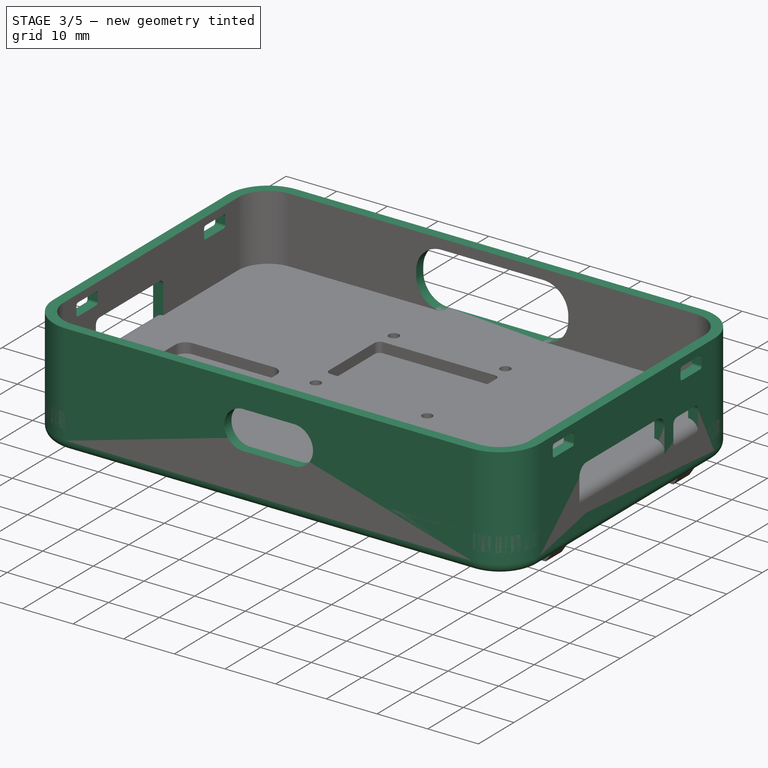
[diagram: stage 3 of 5 — iso view after this stage's code; geometry added in this stage tinted green]
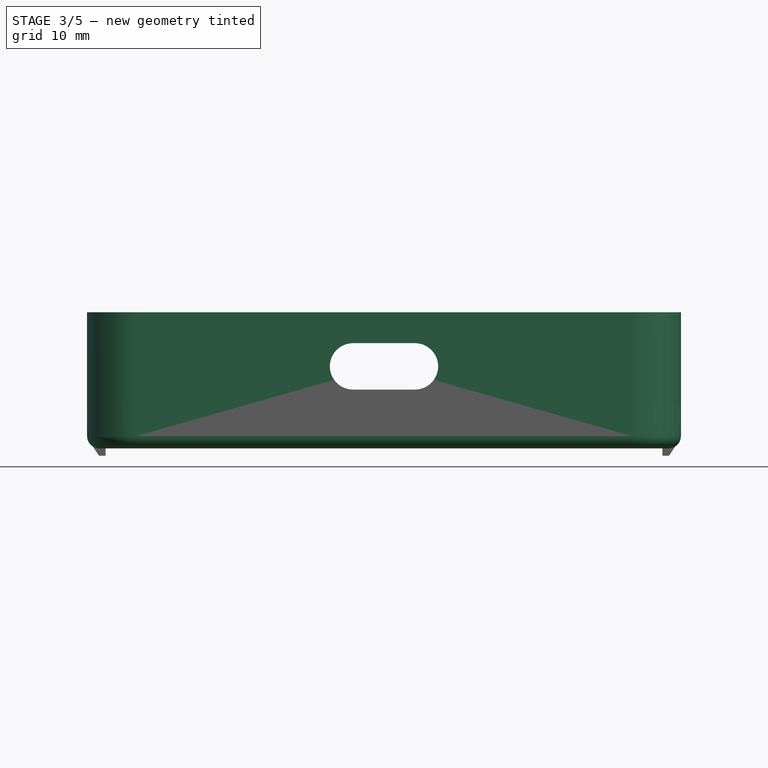
[diagram: stage 3 of 5 — front view after this stage's code; geometry added in this stage tinted green]
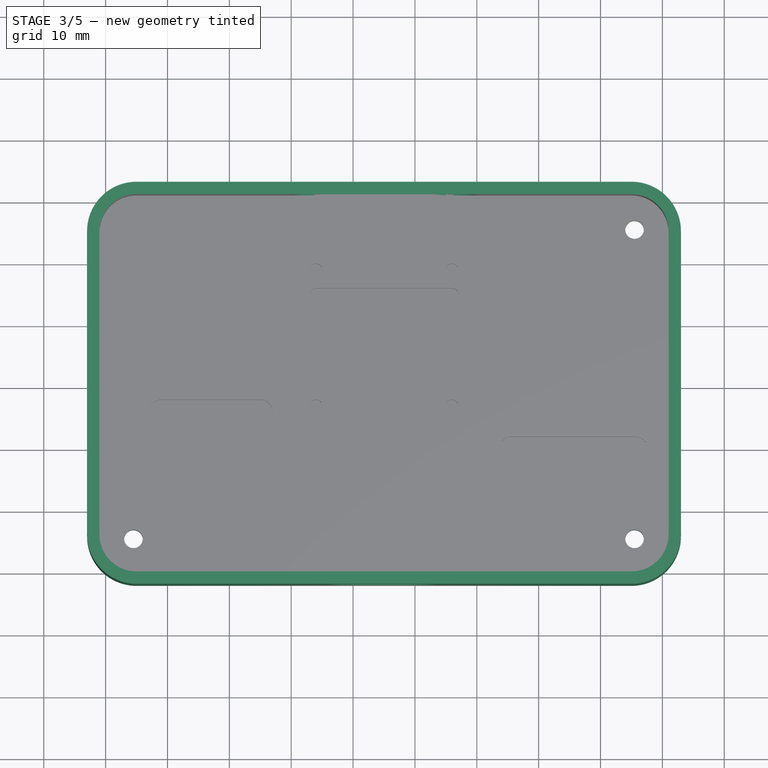
[diagram: stage 3 of 5 — top view after this stage's code; geometry added in this stage tinted green]
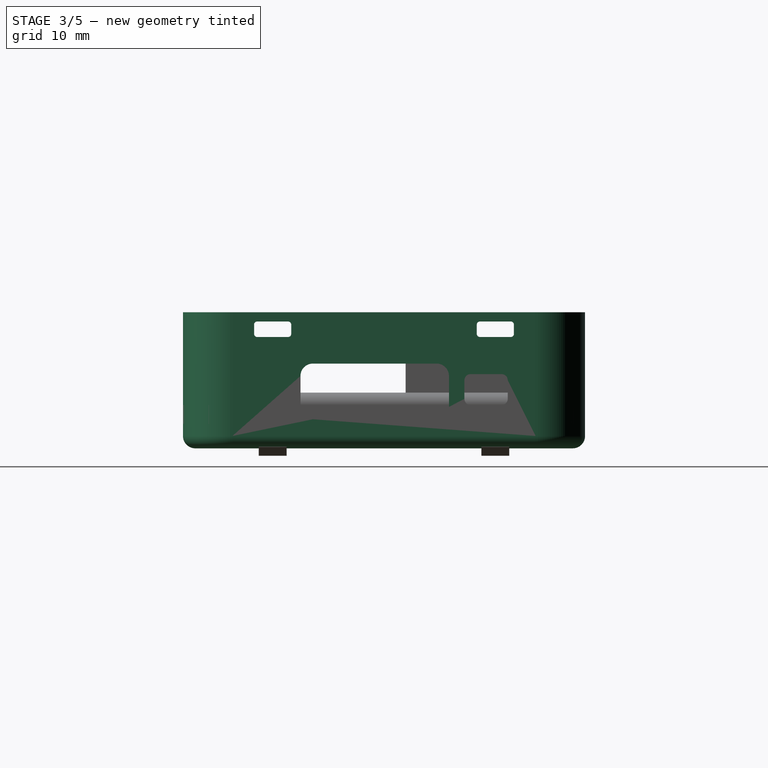
[diagram: stage 3 of 5 — right view after this stage's code; geometry added in this stage tinted green]
FEATURE [PartDesign::Thickness] Thickness
  Base = -> Pad [Face10]
  BaseFeature = -> Pad
  Intersection = false
  Join = 0
  Mode = 0
  SupportTransform = false
  Suppressed = false
  Value = 2
FEATURE [Sketcher::SketchObject] Sketch
  ArcFitTolerance = 1e-06
  AttachmentSupport = -> [Thickness]
  ExternalGeometry = -> [CopyPart__Feature058]
  FullyConstrained = true
  MakeInternals = false
  MapMode = 5
  Placement = pos=(0,0,1.6) rot=(0,0,1;0rad)
  sketch-geometry (3):
    g0: Circle CenterX=4.5 CenterY=-54.5 CenterZ=0 NormalX=0 NormalY=0 NormalZ=1 AngleXU=0 Radius=1.5
    g1: Circle CenterX=85.5 CenterY=-54.5 CenterZ=0 NormalX=0 NormalY=0 NormalZ=1 AngleXU=0 Radius=1.5
    g2: Circle CenterX=85.5 CenterY=-4.5 CenterZ=0 NormalX=0 NormalY=0 NormalZ=1 AngleXU=0 Radius=1.5
  constraints (6):
    c: Coincident(g0,g-3)
    c: Equal(g0,g-3)
    c: Coincident(g1,g-4)
    c: Equal(g1,g-4)
    c: Coincident(g2,g-5)
    c: Equal(g2,g-5)
FEATURE [PartDesign::Pocket] Pocket
  BaseFeature = -> Thickness
  Direction = (0,0,-1)
  Length = 5
  Length2 = 5
  Profile = -> Sketch
  ReferenceAxis = -> Sketch [N_Axis]
  Suppressed = false
  Type = 1
FEATURE [Sketcher::SketchObject] Sketch002
  ArcFitTolerance = 1e-06
  AttachmentSupport = -> [Thickness]
  ExternalGeometry = -> [Thickness]
  FullyConstrained = true
  MakeInternals = false
  MapMode = 5
  Placement = pos=(0,3,0) rot=(0,0.707107,0.707107;3.14159rad)
  sketch-geometry (10):
    g0: LineSegment StartX=-60 StartY=14.6 StartZ=0 EndX=-60 EndY=13.6 EndZ=0
    g1: LineSegment StartX=-55 StartY=8.6 StartZ=0 EndX=-35 EndY=8.6 EndZ=0
    g2: LineSegment StartX=-30 StartY=13.6 StartZ=0 EndX=-30 EndY=14.6 EndZ=0
    g3: LineSegment StartX=-35 StartY=19.6 StartZ=0 EndX=-55 EndY=19.6 EndZ=0
    g4: ArcOfCircle CenterX=-55 CenterY=14.6 CenterZ=0 NormalX=0 NormalY=0 NormalZ=1 AngleXU=0 Radius=5 StartAngle=1.5708 EndAngle=3.14159
    g5: ArcOfCircle CenterX=-55 CenterY=13.6 CenterZ=0 NormalX=0 NormalY=0 NormalZ=1 AngleXU=0 Radius=5 StartAngle=3.14159 EndAngle=4.71239
    g6: ArcOfCircle CenterX=-35 CenterY=13.6 CenterZ=0 NormalX=0 NormalY=0 NormalZ=1 AngleXU=0 Radius=5 StartAngle=4.71239 EndAngle=6.28319
    g7: ArcOfCircle CenterX=-35 CenterY=14.6 CenterZ=0 NormalX=0 NormalY=0 NormalZ=1 AngleXU=0 Radius=5 StartAngle=1e-16 EndAngle=1.5708
    g8: GeomPoint [constr] X=-60 Y=19.6 Z=0
    g9: GeomPoint [constr] X=-30 Y=8.6 Z=0
  constraints (24):
    c: Tangent(g0,g4) = -1.5708
    c: Tangent(g0,g5) = -1.5708
    c: Tangent(g1,g5) = -1.5708
    c: Tangent(g1,g6) = -1.5708
    c: Tangent(g2,g6) = -1.5708
    c: Tangent(g2,g7) = -1.5708
    c: Tangent(g3,g7) = -1.5708
    c: Tangent(g3,g4) = -1.5708
    c: Vertical(g0)
    c: Vertical(g2)
    c: Horizontal(g1)
    c: Horizontal(g3)
    c: Equal(g4,g5)
    c: Equal(g5,g6)
    c: Equal(g6,g7)
    c: PointOnObject(g8,g0)
    c: PointOnObject(g8,g3)
    c: PointOnObject(g9,g1)
    c: PointOnObject(g9,g2)
    c: Radius(g5) = 5
    c: Distance(g3,g1) = 11
    c: DistanceX(g0,g2) = 30
    c: DistanceY(g3,g-3) = 2
    c: DistanceX(g-3,g3) = 30
FEATURE [PartDesign::Pocket] Pocket001
  BaseFeature = -> Pocket
  Direction = (0,-1,2e-16)
  Length = 5
  Length2 = 5
  Profile = -> Sketch002
  ReferenceAxis = -> Sketch002 [N_Axis]
  Suppressed = false
  Type = 2
FEATURE [Sketcher::SketchObject] Sketch003
  ArcFitTolerance = 1e-06
  AttachmentSupport = -> [Pocket001]
  ExternalGeometry = -> [Pocket001]
  FullyConstrained = true
  MakeInternals = false
  MapMode = 5
  Placement = pos=(0,-62,0) rot=(1,0,0;1.5708rad)
  sketch-geometry (4):
    g0: ArcOfCircle CenterX=40 CenterY=12.85 CenterZ=0 NormalX=0 NormalY=0 NormalZ=1 AngleXU=0 Radius=3.75 StartAngle=1.5708 EndAngle=4.71239
    g1: ArcOfCircle CenterX=50 CenterY=12.85 CenterZ=0 NormalX=0 NormalY=0 NormalZ=1 AngleXU=0 Radius=3.75 StartAngle=4.71239 EndAngle=7.85398
    g2: LineSegment StartX=40 StartY=16.6 StartZ=0 EndX=50 EndY=16.6 EndZ=0
    g3: LineSegment StartX=40 StartY=9.1 StartZ=0 EndX=50 EndY=9.1 EndZ=0
  constraints (10):
    c: Tangent(g0,g2) = 1.5708
    c: Tangent(g0,g3) = -1.5708
    c: Tangent(g1,g2) = 1.5708
    c: Tangent(g1,g3) = -1.5708
    c: Equal(g0,g1)
    c: Horizontal(g2)
    c: DistanceX(g0,g1) = 10
    c: DistanceY(g0,g0) = 7.5
    c: DistanceY(g0,g-3) = 5
    c: DistanceX(g-3,g0) = 35
FEATURE [PartDesign::Pocket] Pocket002
  BaseFeature = -> Pocket001
  Direction = (0,1,-2e-16)
  Length = 5
  Length2 = 5
  Profile = -> Sketch003
  ReferenceAxis = -> Sketch003 [N_Axis]
  Suppressed = false
  Type = 2
FEATURE [Sketcher::SketchObject] Sketch004
  ArcFitTolerance = 1e-06
  AttachmentSupport = -> [Pocket002]
  ExternalGeometry = -> [Pocket002]
  FullyConstrained = true
  MakeInternals = false
  MapMode = 5
  Placement = pos=(-3,0,0) rot=(0.57735,-0.57735,-0.57735;2.0944rad)
  sketch-geometry (10):
    g0: LineSegment StartX=26 StartY=14.1 StartZ=0 EndX=26 EndY=6.1 EndZ=0
    g1: LineSegment StartX=27 StartY=5.1 StartZ=0 EndX=44 EndY=5.1 EndZ=0
    g2: LineSegment StartX=45 StartY=6.1 StartZ=0 EndX=45 EndY=14.1 EndZ=0
    g3: LineSegment StartX=44 StartY=15.1 StartZ=0 EndX=27 EndY=15.1 EndZ=0
    g4: ArcOfCircle CenterX=27 CenterY=14.1 CenterZ=0 NormalX=0 NormalY=0 NormalZ=1 AngleXU=0 Radius=1 StartAngle=1.5708 EndAngle=3.14159
    g5: ArcOfCircle CenterX=27 CenterY=6.1 CenterZ=0 NormalX=0 NormalY=0 NormalZ=1 AngleXU=0 Radius=1 StartAngle=3.14159 EndAngle=4.71239
    g6: ArcOfCircle CenterX=44 CenterY=6.1 CenterZ=0 NormalX=0 NormalY=0 NormalZ=1 AngleXU=0 Radius=1 StartAngle=4.71239 EndAngle=6.28319
    g7: ArcOfCircle CenterX=44 CenterY=14.1 CenterZ=0 NormalX=0 NormalY=0 NormalZ=1 AngleXU=0 Radius=1 StartAngle=0 EndAngle=1.5708
    g8: GeomPoint [constr] X=26 Y=15.1 Z=0
    g9: GeomPoint [constr] X=45 Y=5.1 Z=0
  constraints (24):
    c: Tangent(g0,g4) = -1.5708
    c: Tangent(g0,g5) = -1.5708
    c: Tangent(g1,g5) = -1.5708
    c: Tangent(g1,g6) = -1.5708
    c: Tangent(g2,g6) = -1.5708
    c: Tangent(g2,g7) = -1.5708
    c: Tangent(g3,g7) = -1.5708
    c: Tangent(g3,g4) = -1.5708
    c: Vertical(g0)
    c: Vertical(g2)
    c: Horizontal(g1)
    c: Horizontal(g3)
    c: Equal(g4,g5)
    c: Equal(g5,g6)
    c: Equal(g6,g7)
    c: PointOnObject(g8,g0)
    c: PointOnObject(g8,g3)
    c: PointOnObject(g9,g1)
    c: PointOnObject(g9,g2)
    c: Radius(g5) = 1
    c: Distance(g1,g3) = 10
    c: DistanceX(g3,g3) = 17
    c: DistanceY(g3,g-3) = 6.5
    c: DistanceX(g3,g-3) = 10
FEATURE [PartDesign::Pocket] Pocket003
  BaseFeature = -> Pocket002
  Direction = (1,0,0)
  Length = 5
  Length2 = 5
  Profile = -> Sketch004
  ReferenceAxis = -> Sketch004 [N_Axis]
  Suppressed = false
  Type = 2
FEATURE [Sketcher::SketchObject] Sketch005
  ArcFitTolerance = 1e-06
  AttachmentSupport = -> [Pocket003]
  ExternalGeometry = -> [Pocket003]
  FullyConstrained = true
  MakeInternals = false
  MapMode = 5
  Placement = pos=(93,0,0) rot=(0.57735,0.57735,0.57735;2.0944rad)
  sketch-geometry (20):
    g0: LineSegment StartX=-43 StartY=11.3 StartZ=0 EndX=-43 EndY=6.3 EndZ=0
    g1: LineSegment StartX=-41 StartY=4.3 StartZ=0 EndX=-21 EndY=4.3 EndZ=0
    g2: LineSegment StartX=-19 StartY=6.3 StartZ=0 EndX=-19 EndY=11.3 EndZ=0
    g3: LineSegment StartX=-21 StartY=13.3 StartZ=0 EndX=-41 EndY=13.3 EndZ=0
    g4: ArcOfCircle CenterX=-41 CenterY=11.3 CenterZ=0 NormalX=0 NormalY=0 NormalZ=1 AngleXU=0 Radius=2 StartAngle=1.5708 EndAngle=3.14159
    g5: ArcOfCircle CenterX=-41 CenterY=6.3 CenterZ=0 NormalX=0 NormalY=0 NormalZ=1 AngleXU=0 Radius=2 StartAngle=3.14159 EndAngle=4.71239
    g6: ArcOfCircle CenterX=-21 CenterY=6.3 CenterZ=0 NormalX=0 NormalY=0 NormalZ=1 AngleXU=0 Radius=2 StartAngle=4.71239 EndAngle=6.28319
    g7: ArcOfCircle CenterX=-21 CenterY=11.3 CenterZ=0 NormalX=0 NormalY=0 NormalZ=1 AngleXU=0 Radius=2 StartAngle=0 EndAngle=1.5708
    g8: GeomPoint [constr] X=-43 Y=13.3 Z=0
    g9: GeomPoint [constr] X=-19 Y=4.3 Z=0
    g10: LineSegment StartX=-16.5 StartY=10.6 StartZ=0 EndX=-16.5 EndY=7.6 EndZ=0
    g11: LineSegment StartX=-15.5 StartY=6.6 StartZ=0 EndX=-10.5 EndY=6.6 EndZ=0
    g12: LineSegment StartX=-9.5 StartY=7.6 StartZ=0 EndX=-9.5 EndY=10.6 EndZ=0
    g13: LineSegment StartX=-10.5 StartY=11.6 StartZ=0 EndX=-15.5 EndY=11.6 EndZ=0
    g14: ArcOfCircle CenterX=-15.5 CenterY=10.6 CenterZ=0 NormalX=0 NormalY=0 NormalZ=1 AngleXU=0 Radius=1 StartAngle=1.5708 EndAngle=3.14159
    g15: ArcOfCircle CenterX=-15.5 CenterY=7.6 CenterZ=0 NormalX=0 NormalY=0 NormalZ=1 AngleXU=0 Radius=1 StartAngle=3.14159 EndAngle=4.71239
    g16: ArcOfCircle CenterX=-10.5 CenterY=7.6 CenterZ=0 NormalX=0 NormalY=0 NormalZ=1 AngleXU=0 Radius=1 StartAngle=4.71239 EndAngle=6.28319
    g17: ArcOfCircle CenterX=-10.5 CenterY=10.6 CenterZ=0 NormalX=0 NormalY=0 NormalZ=1 AngleXU=0 Radius=1 StartAngle=0 EndAngle=1.5708
    g18: GeomPoint [constr] X=-16.5 Y=11.6 Z=0
    g19: GeomPoint [constr] X=-9.5 Y=6.6 Z=0
  constraints (48):
    c: Tangent(g0,g4) = -1.5708
    c: Tangent(g0,g5) = -1.5708
    c: Tangent(g1,g5) = -1.5708
    c: Tangent(g1,g6) = -1.5708
    c: Tangent(g2,g6) = -1.5708
    c: Tangent(g2,g7) = -1.5708
    c: Tangent(g3,g7) = -1.5708
    c: Tangent(g3,g4) = -1.5708
    c: Vertical(g0)
    c: Vertical(g2)
    c: Horizontal(g1)
    c: Horizontal(g3)
    c: Equal(g4,g5)
    c: Equal(g5,g6)
    c: Equal(g6,g7)
    c: PointOnObject(g8,g0)
    c: PointOnObject(g8,g3)
    c: PointOnObject(g9,g1)
    c: PointOnObject(g9,g2)
    c: Radius(g5) = 2
    c: Tangent(g10,g14) = -1.5708
    c: Tangent(g10,g15) = -1.5708
    c: Tangent(g11,g15) = -1.5708
    c: Tangent(g11,g16) = -1.5708
    c: Tangent(g12,g16) = -1.5708
    c: Tangent(g12,g17) = -1.5708
    c: Tangent(g13,g17) = -1.5708
    c: Tangent(g13,g14) = -1.5708
    c: Vertical(g10)
    c: Vertical(g12)
    c: Horizontal(g11)
    c: Horizontal(g13)
    c: Equal(g14,g15)
    c: Equal(g15,g16)
    c: Equal(g16,g17)
    c: PointOnObject(g18,g10)
    c: PointOnObject(g18,g13)
    c: PointOnObject(g19,g11)
    c: PointOnObject(g19,g12)
    c: Radius(g15) = 1
    c: DistanceY(g1,g3) = 9
    c: DistanceX(g0,g2) = 24
    c: DistanceX(g-3,g3) = 13
    c: DistanceY(g3,g-3) = 8.3
    c: DistanceX(g10,g12) = 7
    c: DistanceY(g11,g13) = 5
    c: DistanceY(g13,g-3) = 10
    c: DistanceX(g13,g-3) = 5.5
FEATURE [PartDesign::Pocket] Pocket004
  BaseFeature = -> Pocket003
  Direction = (-1,0,0)
  Length = 5
  Length2 = 5
  Profile = -> Sketch005
  ReferenceAxis = -> Sketch005 [N_Axis]
  Suppressed = false
  Type = 2
FEATURE [Sketcher::SketchObject] Sketch006
  ArcFitTolerance = 1e-06
  AttachmentSupport = -> [Pocket004]
  ExternalGeometry = -> [Pocket004]
  FullyConstrained = true
  MakeInternals = false
  MapMode = 5
  Placement = pos=(93,0,0) rot=(0.57735,0.57735,0.57735;2.0944rad)
  sketch-geometry (18):
    g0: LineSegment StartX=-14.5 StartY=19.6 StartZ=0 EndX=-14.5 EndY=18.1 EndZ=0
    g1: LineSegment StartX=-14 StartY=17.6 StartZ=0 EndX=-9 EndY=17.6 EndZ=0
    g2: LineSegment StartX=-8.5 StartY=18.1 StartZ=0 EndX=-8.5 EndY=19.6 EndZ=0
    g3: LineSegment StartX=-9 StartY=20.1 StartZ=0 EndX=-14 EndY=20.1 EndZ=0
    g4: ArcOfCircle CenterX=-14 CenterY=19.6 CenterZ=0 NormalX=0 NormalY=0 NormalZ=1 AngleXU=0 Radius=0.5 StartAngle=1.5708 EndAngle=3.14159
    g5: ArcOfCircle CenterX=-14 CenterY=18.1 CenterZ=0 NormalX=0 NormalY=0 NormalZ=1 AngleXU=0 Radius=0.5 StartAngle=3.14159 EndAngle=4.71239
    g6: ArcOfCircle CenterX=-9 CenterY=18.1 CenterZ=0 NormalX=0 NormalY=0 NormalZ=1 AngleXU=0 Radius=0.5 StartAngle=4.71239 EndAngle=6.28319
    g7: ArcOfCircle CenterX=-9 CenterY=19.6 CenterZ=0 NormalX=0 NormalY=0 NormalZ=1 AngleXU=0 Radius=0.5 StartAngle=0 EndAngle=1.5708
    g8: GeomPoint [constr] X=-14.5 Y=20.1 Z=0
    g9: GeomPoint [constr] X=-8.5 Y=17.6 Z=0
    g10: LineSegment StartX=-50.5 StartY=19.6 StartZ=0 EndX=-50.5 EndY=18.1 EndZ=0
    g11: LineSegment StartX=-50 StartY=17.6 StartZ=0 EndX=-45 EndY=17.6 EndZ=0
    g12: LineSegment StartX=-44.5 StartY=18.1 StartZ=0 EndX=-44.5 EndY=19.6 EndZ=0
    g13: LineSegment StartX=-45 StartY=20.1 StartZ=0 EndX=-50 EndY=20.1 EndZ=0
    g14: ArcOfCircle CenterX=-50 CenterY=19.6 CenterZ=0 NormalX=0 NormalY=0 NormalZ=1 AngleXU=0 Radius=0.5 StartAngle=1.5708 EndAngle=3.14159
    g15: ArcOfCircle CenterX=-50 CenterY=18.1 CenterZ=0 NormalX=0 NormalY=0 NormalZ=1 AngleXU=0 Radius=0.5 StartAngle=3.14159 EndAngle=4.71239
    g16: ArcOfCircle CenterX=-45 CenterY=18.1 CenterZ=0 NormalX=0 NormalY=0 NormalZ=1 AngleXU=0 Radius=0.5 StartAngle=4.71239 EndAngle=6.28319
    g17: ArcOfCircle CenterX=-45 CenterY=19.6 CenterZ=0 NormalX=0 NormalY=0 NormalZ=1 AngleXU=0 Radius=0.5 StartAngle=0 EndAngle=1.5708
  constraints (44):
    c: Tangent(g0,g4) = -1.5708
    c: Tangent(g0,g5) = -1.5708
    c: Tangent(g1,g5) = -1.5708
    c: Tangent(g1,g6) = -1.5708
    c: Tangent(g2,g6) = -1.5708
    c: Tangent(g2,g7) = -1.5708
    c: Tangent(g3,g7) = -1.5708
    c: Tangent(g3,g4) = -1.5708
    c: Vertical(g0)
    c: Vertical(g2)
    c: Horizontal(g1)
    c: Horizontal(g3)
    c: Equal(g4,g5)
    c: Equal(g5,g6)
    c: Equal(g6,g7)
    c: PointOnObject(g8,g0)
    c: PointOnObject(g8,g3)
    c: PointOnObject(g9,g1)
    c: PointOnObject(g9,g2)
    c: Radius(g5) = 0.5
    c: DistanceX(g3,g3) = 5
    c: DistanceY(g0,g0) = 1.5
    c: DistanceY(g3,g-3) = 1.5
    c: Tangent(g10,g14) = -1.5708
    c: Tangent(g10,g15) = -1.5708
    c: Tangent(g11,g15) = -1.5708
    c: Tangent(g11,g16) = -1.5708
    c: Tangent(g12,g16) = -1.5708
    c: Tangent(g12,g17) = -1.5708
    c: Tangent(g13,g17) = -1.5708
    c: Tangent(g13,g14) = -1.5708
    c: Vertical(g10)
    c: Vertical(g12)
    c: Horizontal(g11)
    c: Horizontal(g13)
    c: Equal(g14,g15)
    c: Equal(g15,g16)
    c: Equal(g16,g17)
    c: Radius(g15) = 0.5
    c: DistanceX(g13,g13) = 5
    c: DistanceY(g10,g10) = 1.5
    c: DistanceX(g3,g-3) = 4
    c: DistanceY(g13,g-3) = 1.5
    c: DistanceX(g-3,g13) = 4
FEATURE [PartDesign::Pocket] Pocket005
  BaseFeature = -> Pocket004
  Direction = (-1,0,0)
  Length = 5
  Length2 = 5
  Profile = -> Sketch006
  ReferenceAxis = -> Sketch006 [N_Axis]
  Suppressed = false
  Type = 1
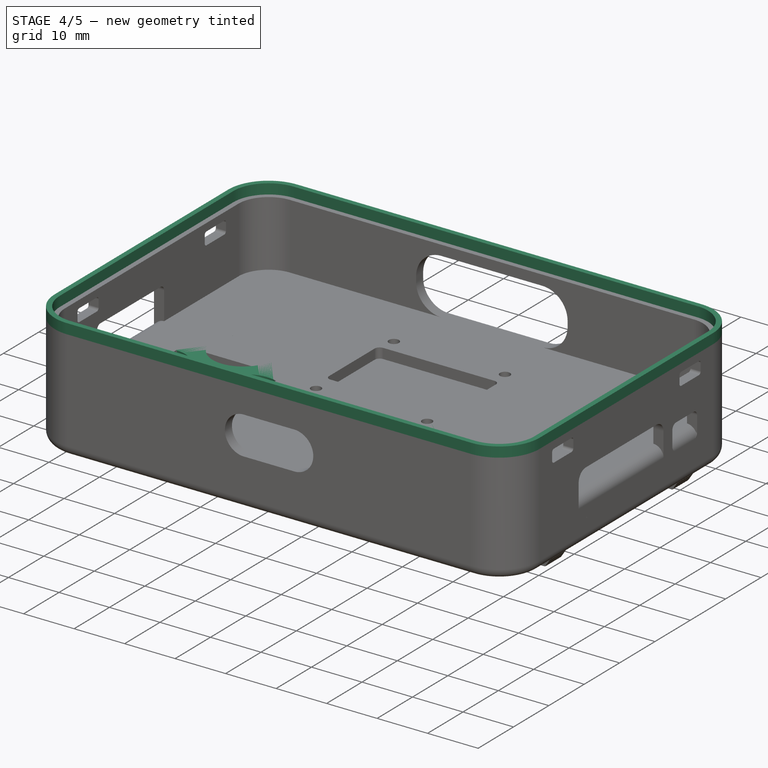
[diagram: stage 4 of 5 — iso view after this stage's code; geometry added in this stage tinted green]
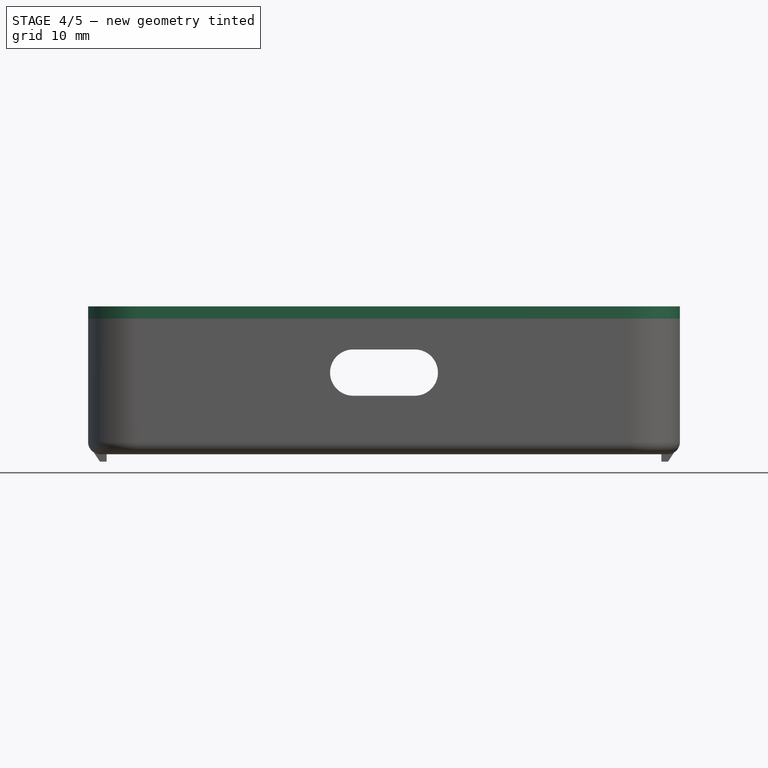
[diagram: stage 4 of 5 — front view after this stage's code; geometry added in this stage tinted green]
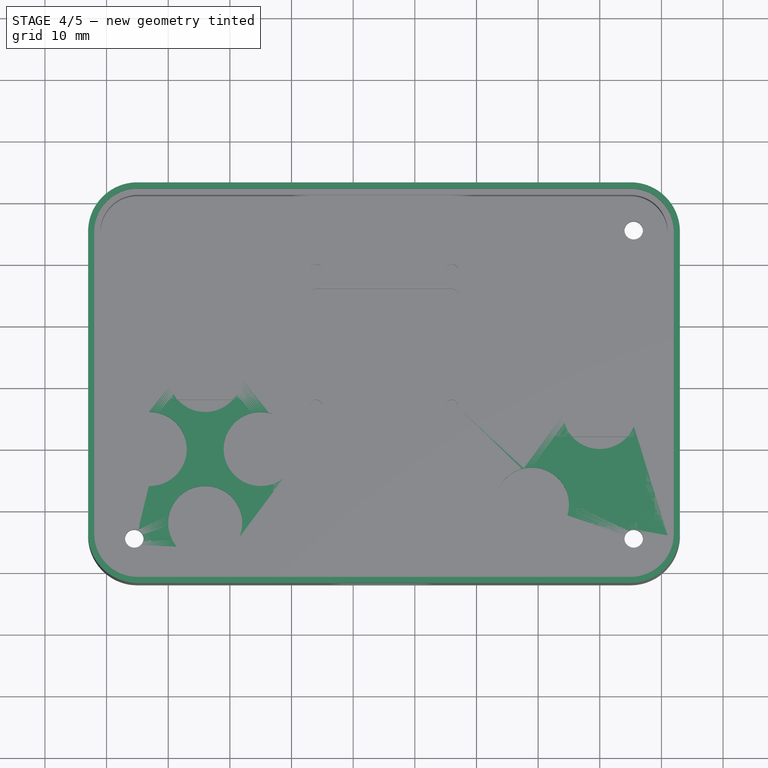
[diagram: stage 4 of 5 — top view after this stage's code; geometry added in this stage tinted green]
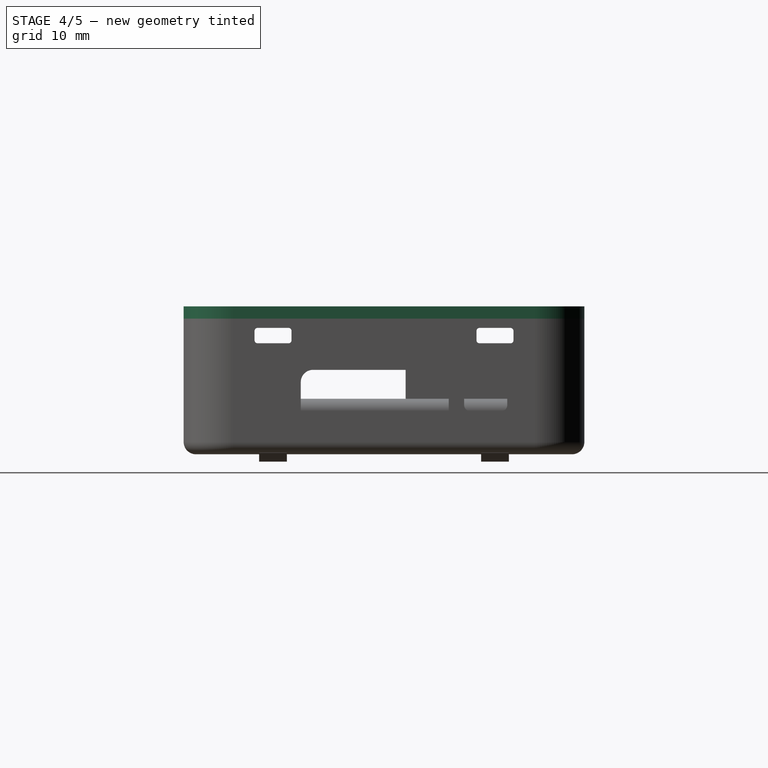
[diagram: stage 4 of 5 — right view after this stage's code; geometry added in this stage tinted green]
FEATURE [PartDesign::ShapeBinder] CopyPart__Feature059
  Placement = pos=(-171,60,0) rot=(0,0,1;0rad)
  TraceSupport = false
FEATURE [Sketcher::SketchObject] Sketch008
  ArcFitTolerance = 1e-06
  AttachmentSupport = -> [CopyPart__Feature059]
  ExternalGeometry = -> [CopyPart__Feature059]
  FullyConstrained = false
  MakeInternals = false
  MapMode = 5
  Placement = pos=(-171,60,1.6) rot=(0,0,1;0rad)
  sketch-geometry (11):
    g0: LineSegment StartX=170 StartY=-65 StartZ=0 EndX=170 EndY=-114 EndZ=0
    g1: LineSegment StartX=176 StartY=-120 StartZ=0 EndX=256 EndY=-120 EndZ=0
    g2: LineSegment StartX=262 StartY=-114 StartZ=0 EndX=262 EndY=-65 EndZ=0
    g3: LineSegment StartX=256 StartY=-59 StartZ=0 EndX=176 EndY=-59 EndZ=0
    g4: ArcOfCircle CenterX=176 CenterY=-65 CenterZ=0 NormalX=0 NormalY=0 NormalZ=1 AngleXU=0 Radius=6 StartAngle=1.5708 EndAngle=3.14159
    g5: ArcOfCircle CenterX=176 CenterY=-114 CenterZ=0 NormalX=0 NormalY=0 NormalZ=1 AngleXU=0 Radius=6 StartAngle=3.14159 EndAngle=4.71239
    g6: GeomPoint [constr] X=170 Y=-120 Z=0
    g7: ArcOfCircle CenterX=256 CenterY=-114 CenterZ=0 NormalX=0 NormalY=0 NormalZ=1 AngleXU=0 Radius=6 StartAngle=4.71239 EndAngle=6.28319
    g8: GeomPoint [constr] X=262 Y=-120 Z=0
    g9: ArcOfCircle CenterX=256 CenterY=-65 CenterZ=0 NormalX=0 NormalY=0 NormalZ=1 AngleXU=0 Radius=6 StartAngle=-9e-16 EndAngle=1.5708
    g10: GeomPoint [constr] X=261 Y=-60 Z=0
  constraints (25):
    c: Tangent(g0,g4) = -1.5708
    c: Tangent(g3,g4) = -1.5708
    c: PointOnObject(g6,g0)
    c: PointOnObject(g6,g1)
    c: Tangent(g0,g5) = -1.5708
    c: Tangent(g1,g5) = -1.5708
    c: PointOnObject(g8,g1)
    c: PointOnObject(g8,g2)
    c: Tangent(g1,g7) = -1.5708
    c: Tangent(g2,g7) = -1.5708
    c: Tangent(g2,g9) = -1.5708
    c: Tangent(g3,g9) = -1.5708
    c: Parallel(g1,g-3)
    c: Parallel(g3,g-6)
    c: Parallel(g-5,g0)
    c: Parallel(g2,g-4)
    c: DistanceY(g-6,g-6) = 0
    c: DistanceX(g0,g-7) = 1
    c: DistanceY(g-7,g3) = 1
    c: DistanceY(g-7,g0) = 0
    c: DistanceX(g-9,g2) = 1
    c: DistanceY(g2,g-9) = 0
    c: DistanceX(g1,g-9) = 0
    c: DistanceX(g5,g-10) = 0
    c: DistanceY(g-8,g9) = 0
FEATURE [PartDesign::Pad] Pad001
  Direction = (0,0,1)
  Length = 5
  Length2 = 10
  Placement = pos=(-171,60,0) rot=(0,0,1;0rad)
  Profile = -> Sketch008
  ReferenceAxis = -> Sketch008 [N_Axis]
  Suppressed = false
  Type = 0
FEATURE [PartDesign::Thickness] Thickness001
  Base = -> Pad001 [Face9]
  BaseFeature = -> Pad001
  Intersection = false
  Join = 0
  Mode = 0
  SupportTransform = false
  Suppressed = false
  Value = 2
FEATURE [Sketcher::SketchObject] Sketch009
  ArcFitTolerance = 1e-06
  AttachmentSupport = -> [Thickness001]
  ExternalGeometry = -> [CopyPart__Feature059]
  FullyConstrained = false
  MakeInternals = false
  MapMode = 5
  Placement = pos=(0,0,8.6) rot=(0,0,1;0rad)
  sketch-geometry (17):
    g0: LineSegment StartX=33 StartY=-15.0036 StartZ=0 EndX=33 EndY=-27.8691 EndZ=0
    g1: LineSegment StartX=34 StartY=-28.8691 StartZ=0 EndX=56 EndY=-28.8691 EndZ=0
    g2: LineSegment StartX=57 StartY=-27.8691 StartZ=0 EndX=57 EndY=-15.0036 EndZ=0
    g3: LineSegment StartX=56 StartY=-14.0036 StartZ=0 EndX=34 EndY=-14.0036 EndZ=0
    g4: ArcOfCircle CenterX=34 CenterY=-15.0036 CenterZ=0 NormalX=0 NormalY=0 NormalZ=1 AngleXU=0 Radius=1 StartAngle=1.5708 EndAngle=3.14159
    g5: ArcOfCircle CenterX=34 CenterY=-27.8691 CenterZ=0 NormalX=0 NormalY=0 NormalZ=1 AngleXU=0 Radius=1 StartAngle=3.14159 EndAngle=4.71239
    g6: ArcOfCircle CenterX=56 CenterY=-27.8691 CenterZ=0 NormalX=0 NormalY=0 NormalZ=1 AngleXU=0 Radius=1 StartAngle=4.71239 EndAngle=6.28319
    g7: ArcOfCircle CenterX=56 CenterY=-15.0036 CenterZ=0 NormalX=0 NormalY=0 NormalZ=1 AngleXU=0 Radius=1 StartAngle=-1.8e-15 EndAngle=1.5708
    g8: GeomPoint [constr] X=33 Y=-14.0036 Z=0
    g9: GeomPoint [constr] X=57 Y=-28.8691 Z=0
    g10: Circle CenterX=34 CenterY=-11 CenterZ=0 NormalX=0 NormalY=0 NormalZ=1 AngleXU=0 Radius=1
    g11: Circle CenterX=56 CenterY=-11 CenterZ=0 NormalX=0 NormalY=0 NormalZ=1 AngleXU=0 Radius=1
    g12: Circle CenterX=56 CenterY=-33 CenterZ=0 NormalX=0 NormalY=0 NormalZ=1 AngleXU=0 Radius=1
    g13: Circle CenterX=34 CenterY=-33 CenterZ=0 NormalX=0 NormalY=0 NormalZ=1 AngleXU=0 Radius=1
    g14: Circle CenterX=4.5 CenterY=-54.5 CenterZ=0 NormalX=0 NormalY=0 NormalZ=1 AngleXU=0 Radius=1.5
    g15: Circle CenterX=85.5 CenterY=-54.5 CenterZ=0 NormalX=0 NormalY=0 NormalZ=1 AngleXU=0 Radius=1.5
    g16: Circle CenterX=85.5 CenterY=-4.5 CenterZ=0 NormalX=0 NormalY=0 NormalZ=1 AngleXU=0 Radius=1.5
  constraints (37):
    c: Tangent(g0,g4) = -1.5708
    c: Tangent(g0,g5) = -1.5708
    c: Tangent(g1,g5) = -1.5708
    c: Tangent(g1,g6) = -1.5708
    c: Tangent(g2,g6) = -1.5708
    c: Tangent(g2,g7) = -1.5708
    c: Tangent(g3,g7) = -1.5708
    c: Tangent(g3,g4) = -1.5708
    c: Vertical(g0)
    c: Vertical(g2)
    c: Horizontal(g1)
    c: Horizontal(g3)
    c: Equal(g4,g5)
    c: Equal(g5,g6)
    c: Equal(g6,g7)
    c: PointOnObject(g8,g0)
    c: PointOnObject(g8,g3)
    c: PointOnObject(g9,g1)
    c: PointOnObject(g9,g2)
    c: Radius(g5) = 1
    c: Vertical(g3,g-3)
    c: Vertical(g-4,g3)
    c: Vertical(g1,g-5)
    c: Coincident(g10,g-3)
    c: Equal(g10,g-3)
    c: Coincident(g11,g-4)
    c: Equal(g11,g-4)
    c: Coincident(g12,g-5)
    c: Equal(g12,g-5)
    c: Coincident(g13,g-6)
    c: Equal(g13,g-6)
    c: Coincident(g14,g-7)
    c: Equal(g14,g-7)
    c: Coincident(g15,g-8)
    c: Equal(g15,g-8)
    c: Coincident(g16,g-9)
    c: Equal(g16,g-9)
FEATURE [PartDesign::Pocket] Pocket006
  BaseFeature = -> Thickness001
  Direction = (0,0,-1)
  Length = 5
  Length2 = 5
  Profile = -> Sketch009
  ReferenceAxis = -> Sketch009 [N_Axis]
  Suppressed = false
  Type = 2
FEATURE [Sketcher::SketchObject] Sketch010
  ArcFitTolerance = 1e-06
  AttachmentSupport = -> [Pocket006]
  ExternalGeometry = -> [Pocket006]
  FullyConstrained = true
  MakeInternals = false
  MapMode = 5
  Placement = pos=(0,0,8.6) rot=(0,0,1;0rad)
  sketch-geometry (6):
    g0: Circle CenterX=80 CenterY=-34 CenterZ=0 NormalX=0 NormalY=0 NormalZ=1 AngleXU=0 Radius=6
    g1: Circle CenterX=69 CenterY=-49 CenterZ=0 NormalX=0 NormalY=0 NormalZ=1 AngleXU=0 Radius=6
    g2: Circle CenterX=16 CenterY=-52 CenterZ=0 NormalX=0 NormalY=0 NormalZ=1 AngleXU=0 Radius=6
    g3: Circle CenterX=7 CenterY=-40 CenterZ=0 NormalX=0 NormalY=0 NormalZ=1 AngleXU=0 Radius=6
    g4: Circle CenterX=25 CenterY=-40 CenterZ=0 NormalX=0 NormalY=0 NormalZ=1 AngleXU=0 Radius=6
    g5: Circle CenterX=16 CenterY=-28 CenterZ=0 NormalX=0 NormalY=0 NormalZ=1 AngleXU=0 Radius=6
  constraints (18):
    c: Diameter(g0) = 12
    c: Diameter(g1) = 12
    c: Diameter(g2) = 12
    c: Diameter(g3) = 12
    c: Diameter(g4) = 12
    c: Diameter(g5) = 12
    c: Vertical(g5,g2)
    c: Horizontal(g3,g4)
    c: DistanceX(g5,g4) = 9
    c: DistanceX(g3,g5) = 9
    c: DistanceY(g4,g5) = 12
    c: DistanceY(g2,g4) = 12
    c: DistanceY(g1,g0) = 15
    c: DistanceX(g1,g0) = 11
    c: DistanceY(g-3,g2) = 8
    c: DistanceY(g-3,g1) = 11
    c: DistanceX(g-3,g2) = 11
    c: DistanceX(g1,g-3) = 16
FEATURE [PartDesign::Pocket] Pocket007
  BaseFeature = -> Pocket006
  Direction = (0,0,-1)
  Length = 5
  Length2 = 5
  Profile = -> Sketch010
  ReferenceAxis = -> Sketch010 [N_Axis]
  Suppressed = false
  Type = 2
FEATURE [Sketcher::SketchObject] Sketch011
  ArcFitTolerance = 1e-06
  AttachmentSupport = -> [Pocket007]
  ExternalGeometry = -> [Pocket007]
  FullyConstrained = true
  MakeInternals = false
  MapMode = 5
  Placement = pos=(91,0,0) rot=(0.57735,-0.57735,-0.57735;2.0944rad)
  sketch-geometry (4):
    g0: LineSegment StartX=9.25 StartY=4.6 StartZ=0 EndX=9.25 EndY=-1.6 EndZ=0
    g1: LineSegment StartX=9.25 StartY=-1.6 StartZ=0 EndX=13.75 EndY=-1.6 EndZ=0
    g2: LineSegment StartX=13.75 StartY=-1.6 StartZ=0 EndX=13.75 EndY=4.6 EndZ=0
    g3: LineSegment StartX=13.75 StartY=4.6 StartZ=0 EndX=9.25 EndY=4.6 EndZ=0
  constraints (12):
    c: Coincident(g0,g1)
    c: Coincident(g1,g2)
    c: Coincident(g2,g3)
    c: Coincident(g3,g0)
    c: Vertical(g0)
    c: Vertical(g2)
    c: Horizontal(g1)
    c: Horizontal(g3)
    c: DistanceX(g-3,g0) = 4.25
    c: DistanceX(g3,g3) = 4.5
    c: DistanceY(g-3,g0) = 3
    c: DistanceY(g0,g-3) = 3.2
FEATURE [PartDesign::Pad] Pad002
  BaseFeature = -> Pocket007
  Direction = (-1,0,0)
  Length = 1
  Length2 = 10
  Profile = -> Sketch011
  ReferenceAxis = -> Sketch011 [N_Axis]
  Suppressed = false
  Type = 0
FEATURE [PartDesign::Body] Body002
  AllowCompound = false
  Group = -> [Sketch008,CopyPart__Feature059,Pad001,Thickness001,Sketch009,Pocket006,Sketch010,Pocket007,Sketch011,Pad002,Sketch012,Pocket008,Sketch013,Pad003,Sketch014,Pocket009,DatumPlane,Mirrored,DatumPlane001,Mirrored001,DatumPlane002,DatumLine,PolarPattern,Sketch015,Pocket010]
  Origin = -> Origin060
  Placement = pos=(0,0,20) rot=(0,0,1;0rad)
  Tip = -> Pocket010
FEATURE [Sketcher::SketchObject] Sketch016
  ArcFitTolerance = 1e-06
  AttachmentSupport = -> [Pocket005]
  ExternalGeometry = -> [Pocket005]
  FullyConstrained = true
  MakeInternals = false
  MapMode = 5
  Placement = pos=(0,0,21.6) rot=(0,0,1;0rad)
  sketch-geometry (20):
    g0: LineSegment StartX=-3 StartY=-5 StartZ=0 EndX=-3 EndY=-54 EndZ=0
    g1: LineSegment StartX=5 StartY=-62 StartZ=0 EndX=85 EndY=-62 EndZ=0
    g2: LineSegment StartX=93 StartY=-54 StartZ=0 EndX=93 EndY=-5 EndZ=0
    g3: LineSegment StartX=85 StartY=3 StartZ=0 EndX=5 EndY=3 EndZ=0
    g4: ArcOfCircle CenterX=5 CenterY=-5 CenterZ=0 NormalX=0 NormalY=0 NormalZ=1 AngleXU=0 Radius=8 StartAngle=1.5708 EndAngle=3.14159
    g5: ArcOfCircle CenterX=5 CenterY=-54 CenterZ=0 NormalX=0 NormalY=0 NormalZ=1 AngleXU=0 Radius=8 StartAngle=3.14159 EndAngle=4.71239
    g6: ArcOfCircle CenterX=85 CenterY=-54 CenterZ=0 NormalX=0 NormalY=0 NormalZ=1 AngleXU=0 Radius=8 StartAngle=4.71239 EndAngle=6.28319
    g7: ArcOfCircle CenterX=85 CenterY=-5 CenterZ=0 NormalX=0 NormalY=0 NormalZ=1 AngleXU=0 Radius=8 StartAngle=0 EndAngle=1.5708
    g8: GeomPoint [constr] X=-3 Y=3 Z=0
    g9: GeomPoint [constr] X=93 Y=-62 Z=0
    g10: LineSegment StartX=-2 StartY=-5 StartZ=0 EndX=-2 EndY=-54 EndZ=0
    g11: LineSegment StartX=5 StartY=-61 StartZ=0 EndX=85 EndY=-61 EndZ=0
    g12: LineSegment StartX=92 StartY=-54 StartZ=0 EndX=92 EndY=-5 EndZ=0
    g13: LineSegment StartX=85 StartY=2 StartZ=0 EndX=5 EndY=2 EndZ=0
    g14: ArcOfCircle CenterX=5 CenterY=-5 CenterZ=0 NormalX=0 NormalY=0 NormalZ=1 AngleXU=0 Radius=7 StartAngle=1.5708 EndAngle=3.14159
    g15: ArcOfCircle CenterX=5 CenterY=-54 CenterZ=0 NormalX=0 NormalY=0 NormalZ=1 AngleXU=0 Radius=7 StartAngle=3.14159 EndAngle=4.71239
    g16: ArcOfCircle CenterX=85 CenterY=-54 CenterZ=0 NormalX=0 NormalY=0 NormalZ=1 AngleXU=0 Radius=7 StartAngle=4.71239 EndAngle=6.28319
    g17: ArcOfCircle CenterX=85 CenterY=-5 CenterZ=0 NormalX=0 NormalY=0 NormalZ=1 AngleXU=0 Radius=7 StartAngle=0 EndAngle=1.5708
    g18: GeomPoint [constr] X=-2 Y=2 Z=0
    g19: GeomPoint [constr] X=92 Y=-61 Z=0
  constraints (43):
    c: Tangent(g0,g4) = -1.5708
    c: Tangent(g0,g5) = -1.5708
    c: Tangent(g1,g5) = -1.5708
    c: Tangent(g1,g6) = -1.5708
    c: Tangent(g2,g6) = -1.5708
    c: Tangent(g2,g7) = -1.5708
    c: Tangent(g3,g7) = -1.5708
    c: Tangent(g3,g4) = -1.5708
    c: Vertical(g2)
    c: Horizontal(g1)
    c: Equal(g4,g5)
    c: Equal(g5,g6)
    c: PointOnObject(g8,g0)
    c: PointOnObject(g8,g3)
    c: PointOnObject(g9,g1)
    c: PointOnObject(g9,g2)
    c: Coincident(g-8,g3)
    c: Coincident(g0,g-8)
    c: Coincident(g3,g-9)
    c: Coincident(g1,g-10)
    c: Tangent(g10,g14) = -1.5708
    c: Tangent(g10,g15) = -1.5708
    c: Tangent(g11,g15) = -1.5708
    c: Tangent(g11,g16) = -1.5708
    c: Tangent(g12,g16) = -1.5708
    c: Tangent(g12,g17) = -1.5708
    c: Tangent(g13,g17) = -1.5708
    c: Tangent(g13,g14) = -1.5708
    c: Vertical(g10)
    c: Vertical(g12)
    c: Horizontal(g11)
    c: Horizontal(g13)
    c: Equal(g14,g15)
    c: Equal(g15,g16)
    c: Equal(g16,g17)
    c: PointOnObject(g18,g10)
    c: PointOnObject(g18,g13)
    c: PointOnObject(g19,g11)
    c: PointOnObject(g19,g12)
    c: DistanceX(g0,g10) = 1
    c: DistanceY(g13,g3) = 1
    c: DistanceX(g12,g2) = 1
    c: Coincident(g15,g5)
FEATURE [PartDesign::Pad] Pad004
  BaseFeature = -> Pocket005
  Direction = (0,0,1)
  Length = 2
  Length2 = 10
  Profile = -> Sketch016
  ReferenceAxis = -> Sketch016 [N_Axis]
  Suppressed = false
  Type = 0
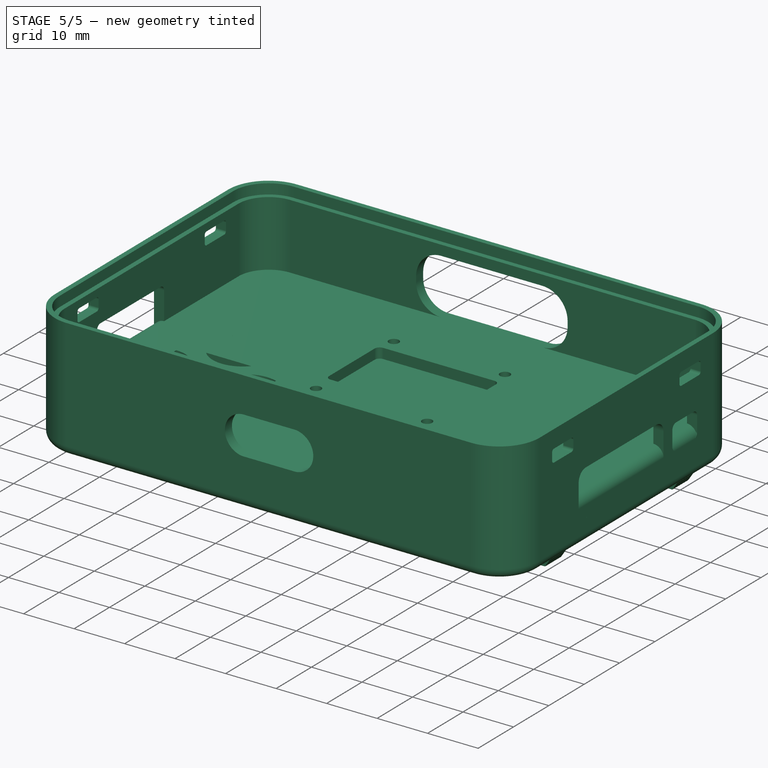
[diagram: stage 5 of 5 — iso view after this stage's code; geometry added in this stage tinted green]
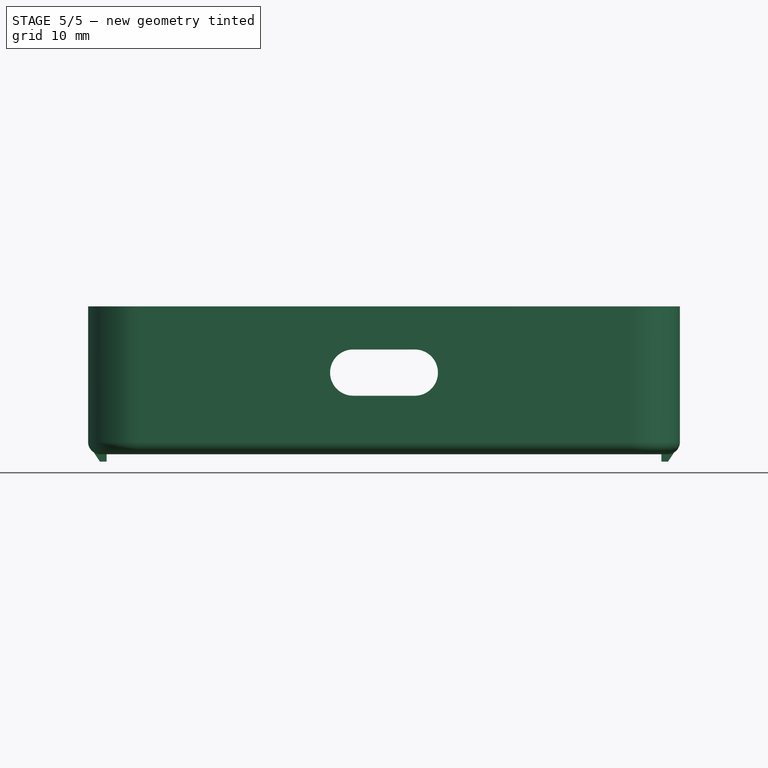
[diagram: stage 5 of 5 — front view after this stage's code; geometry added in this stage tinted green]
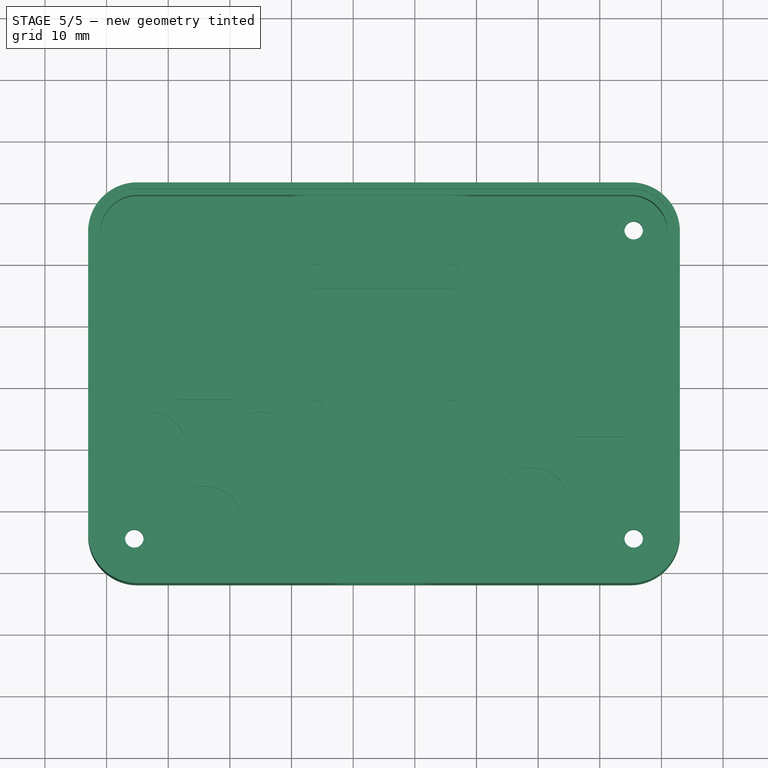
[diagram: stage 5 of 5 — top view after this stage's code; geometry added in this stage tinted green]
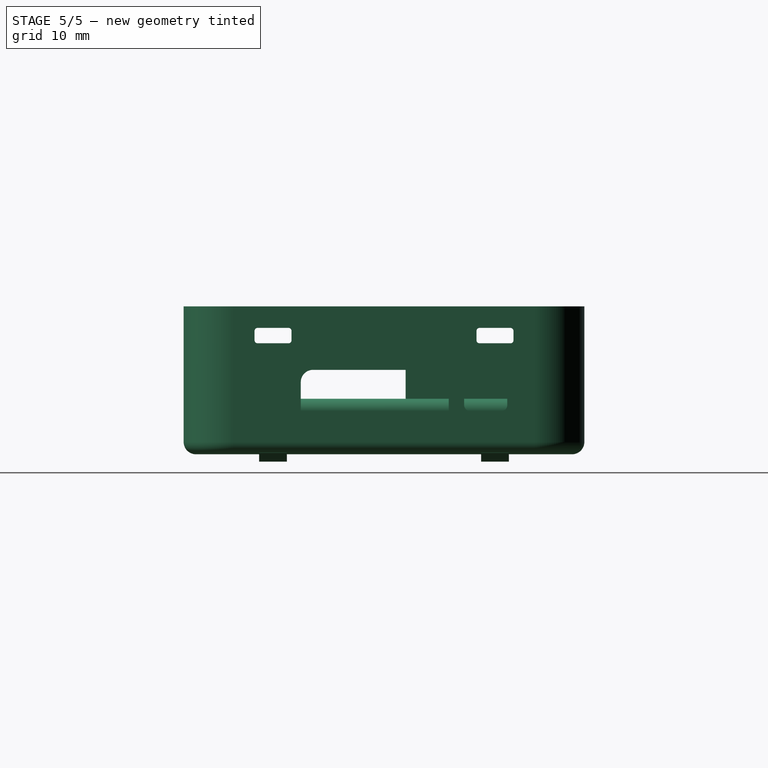
[diagram: stage 5 of 5 — right view after this stage's code; geometry added in this stage tinted green]
FEATURE [Sketcher::SketchObject] Sketch012
  ArcFitTolerance = 1e-06
  AttachmentSupport = -> [Pad002]
  ExternalGeometry = -> [Pad002]
  FullyConstrained = true
  MakeInternals = false
  MapMode = 5
  Placement = pos=(0,-13.75,0) rot=(1,0,0;1.5708rad)
  sketch-geometry (3):
    g0: LineSegment StartX=91 StartY=4.6 StartZ=0 EndX=90 EndY=3.22523 EndZ=0
    g1: LineSegment StartX=90 StartY=3.22523 StartZ=0 EndX=90 EndY=4.6 EndZ=0
    g2: LineSegment StartX=91 StartY=4.6 StartZ=0 EndX=90 EndY=4.6 EndZ=0
  constraints (6):
    c: Coincident(g0,g-5)
    c: Coincident(g1,g0)
    c: Coincident(g2,g0)
    c: Coincident(g2,g1)
    c: Perpendicular(g1,g-5) = 1.5708
    c: Distance(g0,g0) = 1.7
FEATURE [PartDesign::Pocket] Pocket008
  BaseFeature = -> Pad002
  Direction = (0,1,-2e-16)
  Length = 5
  Length2 = 5
  Profile = -> Sketch012
  ReferenceAxis = -> Sketch012 [N_Axis]
  Suppressed = false
  Type = 2
FEATURE [Sketcher::SketchObject] Sketch013
  ArcFitTolerance = 1e-06
  AttachmentSupport = -> [Pocket008]
  ExternalGeometry = -> [Pocket008]
  FullyConstrained = true
  MakeInternals = false
  MapMode = 5
  Placement = pos=(91,0,0) rot=(0.57735,0.57735,0.57735;2.0944rad)
  sketch-geometry (4):
    g0: LineSegment StartX=-13.75 StartY=-1.6 StartZ=0 EndX=-9.25 EndY=-1.6 EndZ=0
    g1: LineSegment StartX=-9.25 StartY=-1.6 StartZ=0 EndX=-9.25 EndY=0 EndZ=0
    g2: LineSegment StartX=-9.25 StartY=0 StartZ=0 EndX=-13.75 EndY=0 EndZ=0
    g3: LineSegment StartX=-13.75 StartY=0 StartZ=0 EndX=-13.75 EndY=-1.6 EndZ=0
  constraints (11):
    c: Coincident(g0,g1)
    c: Coincident(g1,g2)
    c: Coincident(g2,g3)
    c: Coincident(g3,g0)
    c: Horizontal(g0)
    c: Horizontal(g2)
    c: Vertical(g1)
    c: Vertical(g3)
    c: Coincident(g0,g-4)
    c: PointOnObject(g1,g-3)
    c: DistanceY(g1,g-3) = 1.6
FEATURE [PartDesign::Pad] Pad003
  BaseFeature = -> Pocket008
  Direction = (1,0,0)
  Length = 1
  Length2 = 10
  Profile = -> Sketch013
  ReferenceAxis = -> Sketch013 [N_Axis]
  Suppressed = false
  Type = 0
FEATURE [Sketcher::SketchObject] Sketch014
  ArcFitTolerance = 1e-06
  AttachmentSupport = -> [Pad003]
  ExternalGeometry = -> [Pad003]
  FullyConstrained = true
  MakeInternals = false
  MapMode = 5
  Placement = pos=(0,-13.75,0) rot=(1,0,0;1.5708rad)
  sketch-geometry (4):
    g0: LineSegment StartX=92 StartY=-0.2 StartZ=0 EndX=92 EndY=-1.6 EndZ=0
    g1: LineSegment StartX=92 StartY=-1.6 StartZ=0 EndX=91 EndY=-1.6 EndZ=0
    g2: LineSegment StartX=91 StartY=-1.6 StartZ=0 EndX=91 EndY=-1.7 EndZ=0
    g3: LineSegment StartX=92 StartY=-0.2 StartZ=0 EndX=91 EndY=-1.7 EndZ=0
  constraints (10):
    c: Coincident(g0,g-4)
    c: Coincident(g1,g0)
    c: Coincident(g1,g-5)
    c: Coincident(g2,g1)
    c: Vertical(g2)
    c: Coincident(g3,g0)
    c: Coincident(g3,g2)
    c: DistanceY(g0,g-3) = 0.2
    c: DistanceY(g2,g0) = 1.5
    c: Vertical(g0)
FEATURE [PartDesign::Pocket] Pocket009
  BaseFeature = -> Pad003
  Direction = (0,1,-2e-16)
  Length = 5
  Length2 = 5
  Profile = -> Sketch014
  ReferenceAxis = -> Sketch014 [N_Axis]
  Suppressed = false
  Type = 2
FEATURE [PartDesign::Plane] DatumPlane
  AttachmentOffset = pos=(0,0,-40) rot=(0,0,1;0rad)
  AttachmentSupport = -> [Pocket009]
  Length = 100.191
  MapMode = 7
  Placement = pos=(45,3,6.6) rot=(0.57735,0.57735,0.57735;2.0944rad)
  ResizeMode = 0
  Width = 63.1909
FEATURE [PartDesign::Mirrored] Mirrored
  BaseFeature = -> Pocket009
  MirrorPlane = -> DatumPlane
  Originals = -> [Pad002,Pocket008,Pad003,Pocket009]
  Suppressed = false
  TransformMode = 0
FEATURE [PartDesign::Plane] DatumPlane001
  AttachmentOffset = pos=(0,0,29.5) rot=(0,0,1;0rad)
  AttachmentSupport = -> [XZ_Plane060]
  Length = 133.362
  MapMode = 5
  Placement = pos=(0,-29.5,6.6e-15) rot=(1,0,0;1.5708rad)
  ResizeMode = 0
  Width = 65.3623
FEATURE [PartDesign::Mirrored] Mirrored001
  BaseFeature = -> Mirrored
  MirrorPlane = -> DatumPlane001
  Originals = -> [Pad002,Pocket008,Pad003,Pocket009]
  Suppressed = false
  TransformMode = 0
FEATURE [PartDesign::Plane] DatumPlane002
  AttachmentOffset = pos=(-31.5,0,0) rot=(0,1,0;0.994838rad)
  AttachmentSupport = -> [DatumPlane]
  Length = 163.455
  MapMode = 5
  Placement = pos=(45,-28.5,6.6) rot=(0.205006,0.692088,0.692088;2.73718rad)
  ResizeMode = 0
  Width = 67.1083
FEATURE [PartDesign::Line] DatumLine
  AttacherType = Attacher::AttachEngineLine
  AttachmentSupport = -> [DatumPlane,DatumPlane001]
  Length = 20
  MapMode = 30
  Placement = pos=(45,-29.5,6.6) rot=(0,1,0;3.14159rad)
  ResizeMode = 0
FEATURE [PartDesign::PolarPattern] PolarPattern
  Angle = 360
  Axis = -> DatumLine
  BaseFeature = -> Mirrored001
  Mode = 0
  Occurrences = 2
  Offset = 120
  Originals = -> [Pad002,Pocket008,Pad003,Pocket009]
  Suppressed = false
  TransformMode = 0
FEATURE [Sketcher::SketchObject] Sketch015
  ArcFitTolerance = 1e-06
  AttachmentSupport = -> [PolarPattern]
  ExternalGeometry = -> [PolarPattern]
  FullyConstrained = true
  MakeInternals = false
  MapMode = 5
  Placement = pos=(0,0,1.6) rot=(1,0,0;3.14159rad)
  sketch-geometry (20):
    g0: LineSegment StartX=-3 StartY=54 StartZ=0 EndX=-3 EndY=5 EndZ=0
    g1: LineSegment StartX=5 StartY=-3 StartZ=0 EndX=85 EndY=-3 EndZ=0
    g2: LineSegment StartX=93 StartY=5 StartZ=0 EndX=93 EndY=54 EndZ=0
    g3: LineSegment StartX=85 StartY=62 StartZ=0 EndX=5 EndY=62 EndZ=0
    g4: ArcOfCircle CenterX=5 CenterY=54 CenterZ=0 NormalX=0 NormalY=0 NormalZ=1 AngleXU=0 Radius=8 StartAngle=1.5708 EndAngle=3.14159
    g5: ArcOfCircle CenterX=5 CenterY=5 CenterZ=0 NormalX=0 NormalY=0 NormalZ=1 AngleXU=0 Radius=8 StartAngle=3.14159 EndAngle=4.71239
    g6: ArcOfCircle CenterX=85 CenterY=5 CenterZ=0 NormalX=0 NormalY=0 NormalZ=1 AngleXU=0 Radius=8 StartAngle=4.71239 EndAngle=6.28319
    g7: ArcOfCircle CenterX=85 CenterY=54 CenterZ=0 NormalX=0 NormalY=0 NormalZ=1 AngleXU=0 Radius=8 StartAngle=4e-16 EndAngle=1.5708
    g8: GeomPoint [constr] X=-3 Y=62 Z=0
    g9: GeomPoint [constr] X=93 Y=-3 Z=0
    g10: LineSegment StartX=-1.9 StartY=54 StartZ=0 EndX=-1.9 EndY=5 EndZ=0
    g11: LineSegment StartX=5 StartY=-1.9 StartZ=0 EndX=85 EndY=-1.9 EndZ=0
    g12: LineSegment StartX=91.9 StartY=5 StartZ=0 EndX=91.9 EndY=54 EndZ=0
    g13: LineSegment StartX=85 StartY=60.9 StartZ=0 EndX=5 EndY=60.9 EndZ=0
    g14: ArcOfCircle CenterX=5 CenterY=54 CenterZ=0 NormalX=0 NormalY=0 NormalZ=1 AngleXU=0 Radius=6.9 StartAngle=1.5708 EndAngle=3.14159
    g15: ArcOfCircle CenterX=5 CenterY=5 CenterZ=0 NormalX=0 NormalY=0 NormalZ=1 AngleXU=0 Radius=6.9 StartAngle=3.14159 EndAngle=4.71239
    g16: ArcOfCircle CenterX=85 CenterY=5 CenterZ=0 NormalX=0 NormalY=0 NormalZ=1 AngleXU=0 Radius=6.9 StartAngle=4.71239 EndAngle=6.28319
    g17: ArcOfCircle CenterX=85 CenterY=54 CenterZ=0 NormalX=0 NormalY=0 NormalZ=1 AngleXU=0 Radius=6.9 StartAngle=2e-16 EndAngle=1.5708
    g18: GeomPoint [constr] X=-1.9 Y=60.9 Z=0
    g19: GeomPoint [constr] X=91.9 Y=-1.9 Z=0
  constraints (42):
    c: Tangent(g0,g4) = -1.5708
    c: Tangent(g0,g5) = -1.5708
    c: Tangent(g1,g5) = -1.5708
    c: Tangent(g1,g6) = -1.5708
    c: Tangent(g2,g6) = -1.5708
    c: Tangent(g2,g7) = -1.5708
    c: Tangent(g3,g7) = -1.5708
    c: Tangent(g3,g4) = -1.5708
    c: Vertical(g2)
    c: Horizontal(g3)
    c: Equal(g4,g5)
    c: Equal(g5,g6)
    c: PointOnObject(g8,g0)
    c: PointOnObject(g8,g3)
    c: PointOnObject(g9,g1)
    c: PointOnObject(g9,g2)
    c: Tangent(g0,g-10) = -1.5708
    c: Tangent(g1,g-6) = -1.5708
    c: Coincident(g2,g-9)
    c: Tangent(g10,g14) = -1.5708
    c: Tangent(g10,g15) = -1.5708
    c: Tangent(g11,g15) = -1.5708
    c: Tangent(g11,g16) = -1.5708
    c: Tangent(g12,g16) = -1.5708
    c: Tangent(g12,g17) = -1.5708
    c: Tangent(g13,g17) = -1.5708
    c: Tangent(g13,g14) = -1.5708
    c: Vertical(g10)
    c: Vertical(g12)
    c: Horizontal(g11)
    c: Horizontal(g13)
    c: Equal(g14,g15)
    c: Equal(g15,g16)
    c: Equal(g16,g17)
    c: PointOnObject(g18,g10)
    c: PointOnObject(g18,g13)
    c: PointOnObject(g19,g11)
    c: PointOnObject(g19,g12)
    c: DistanceY(g1,g11) = 1.1
    c: DistanceX(g12,g2) = 1.1
    c: DistanceY(g13,g3) = 1.1
    c: Coincident(g5,g15)
FEATURE [PartDesign::Pocket] Pocket010
  BaseFeature = -> PolarPattern
  Direction = (0,0,1)
  Length = 2
  Length2 = 5
  Profile = -> Sketch015
  ReferenceAxis = -> Sketch015 [N_Axis]
  Suppressed = false
  Type = 0
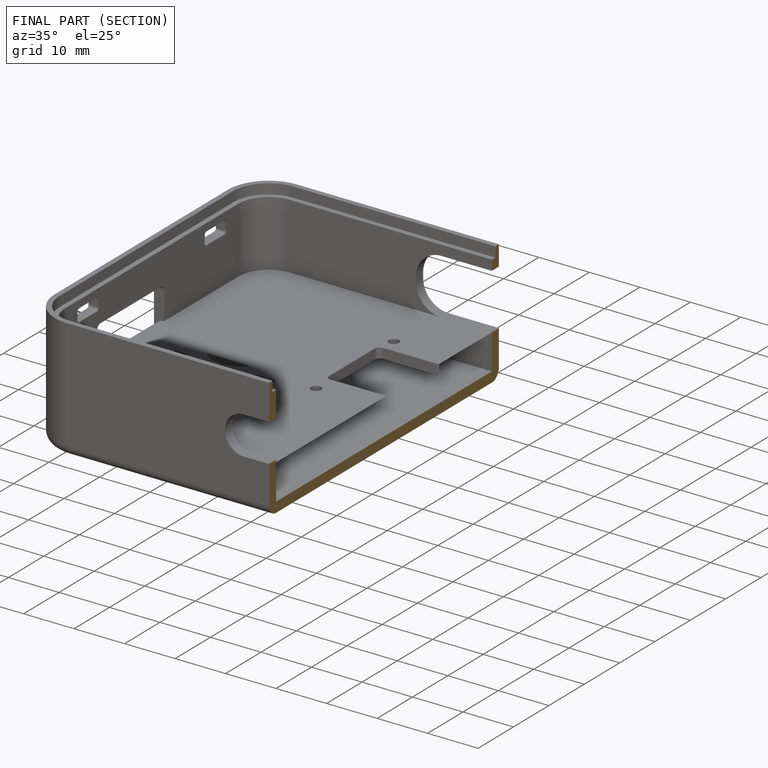
[diagram: finished part — half-section view (interior)]
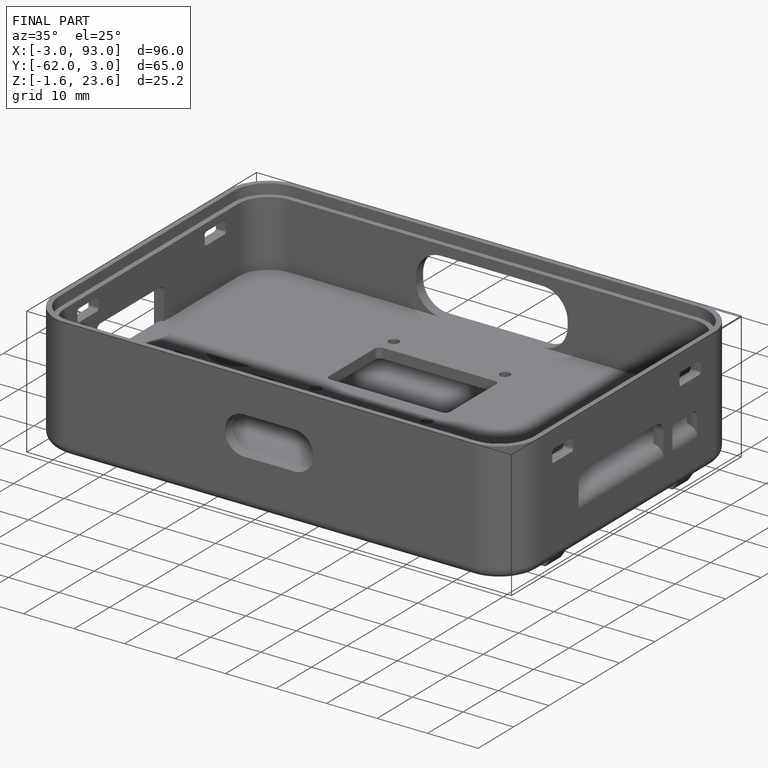
[diagram: finished part — iso view with bounding-box wireframe]
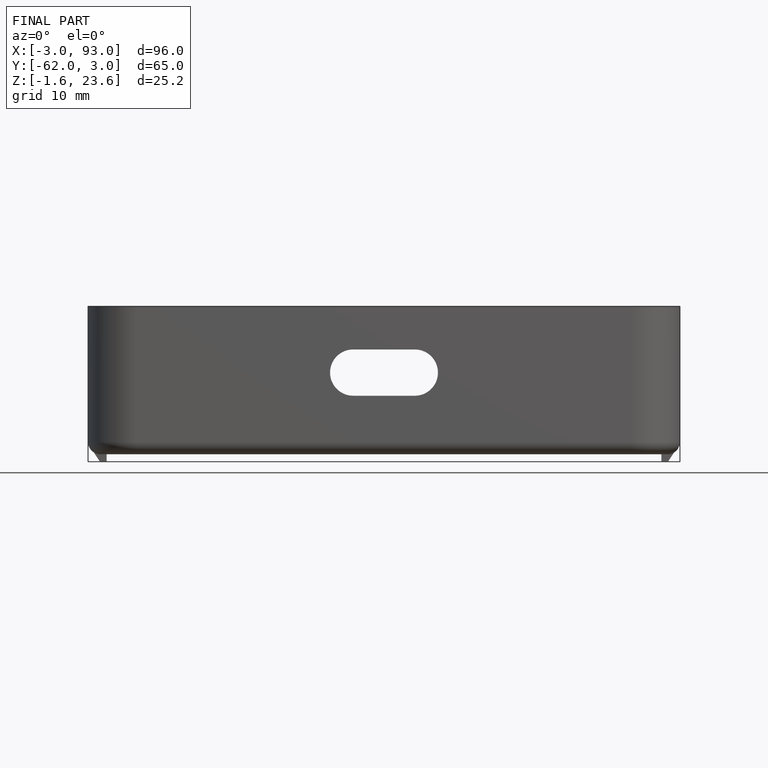
[diagram: finished part — front view with bounding-box wireframe]
